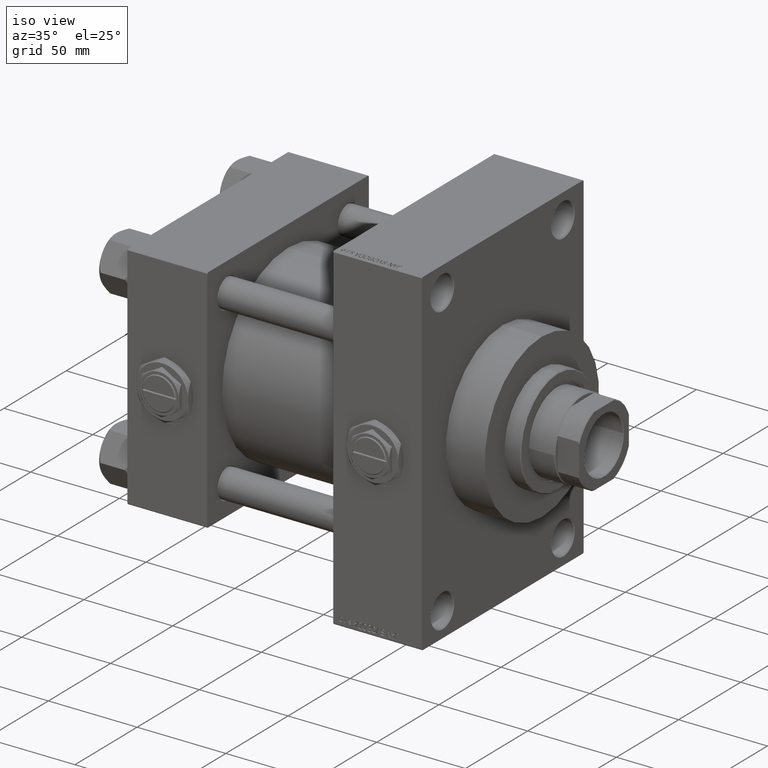
[diagram: clean part render]
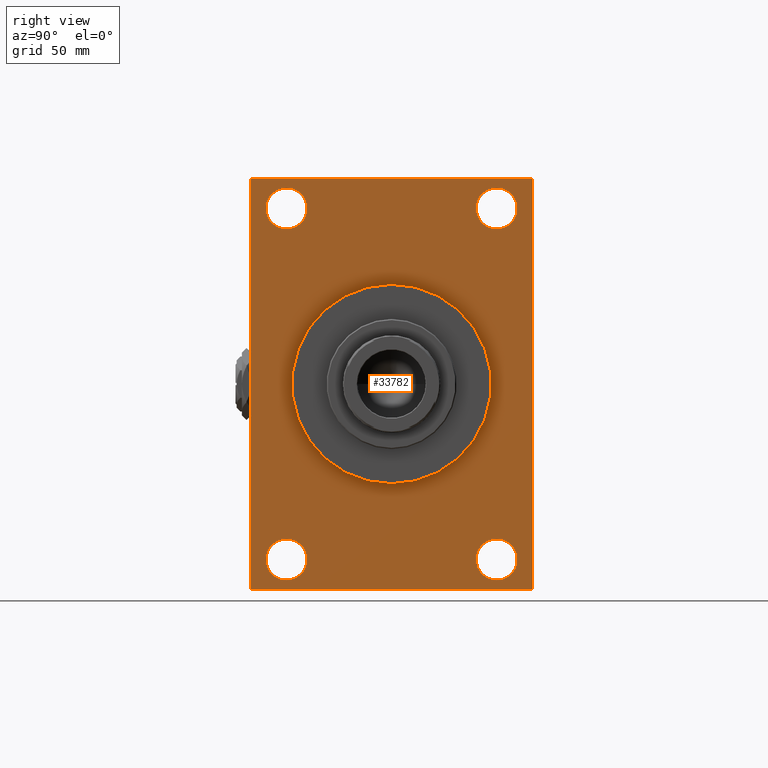
[diagram: tour spotlight — one face highlighted and labeled with its STEP entity id]
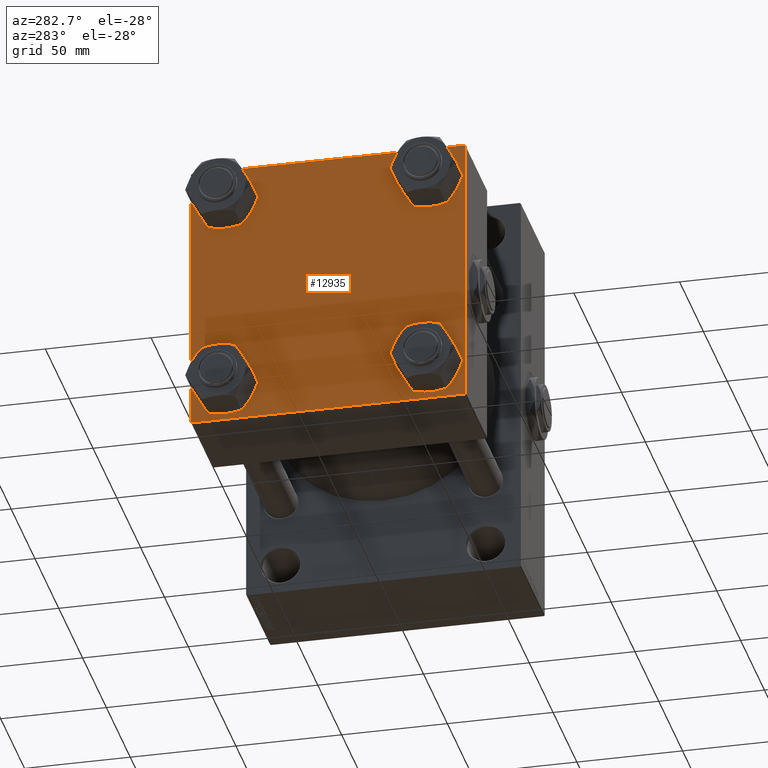
[diagram: tour spotlight — one face highlighted and labeled with its STEP entity id]
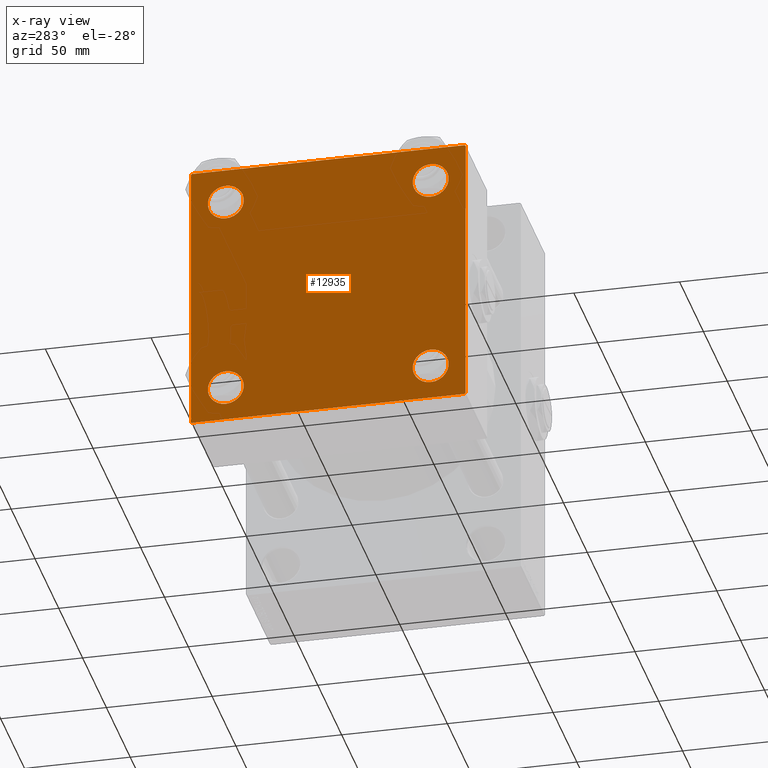
[diagram: x-ray of the same camera — body ghosted, this tour face saturated]
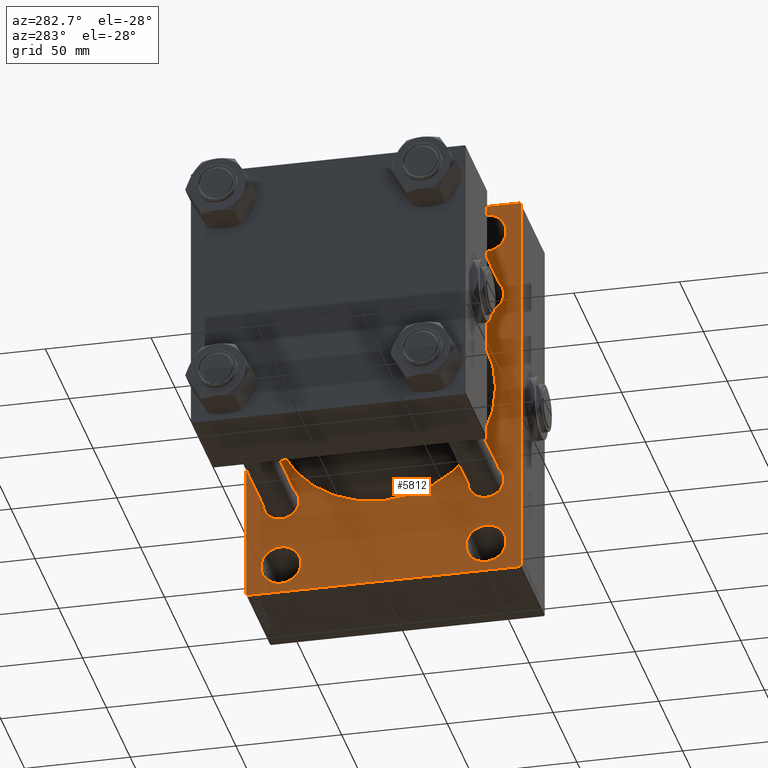
[diagram: tour spotlight — one face highlighted and labeled with its STEP entity id]
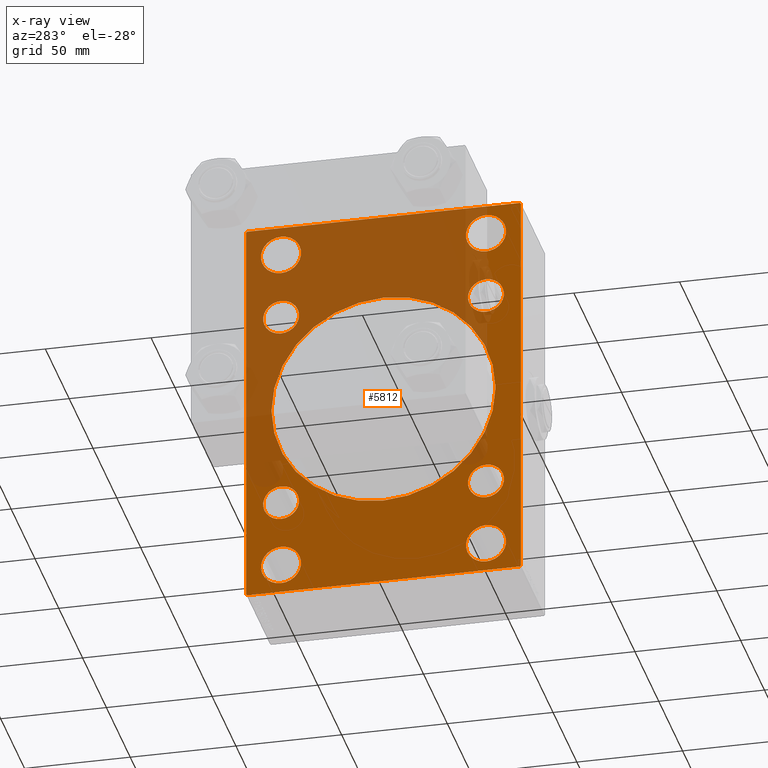
[diagram: x-ray of the same camera — body ghosted, this tour face saturated]
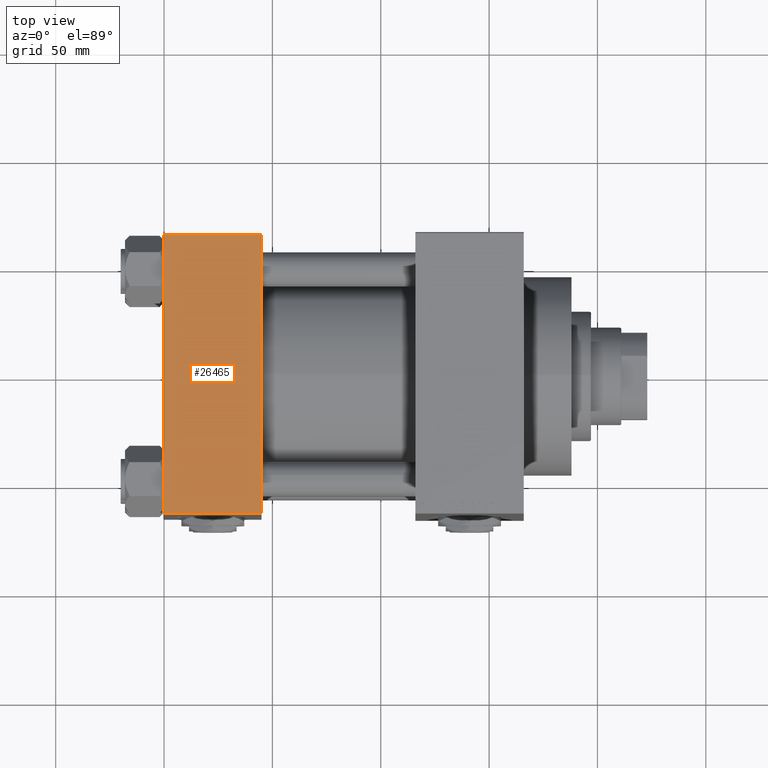
[diagram: tour spotlight — one face highlighted and labeled with its STEP entity id]
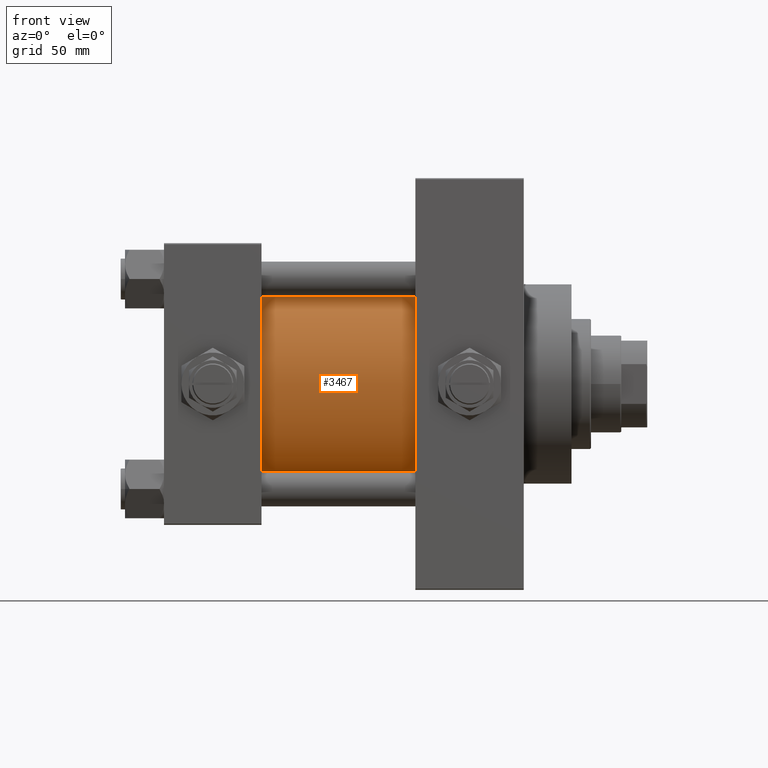
[diagram: tour spotlight — one face highlighted and labeled with its STEP entity id]
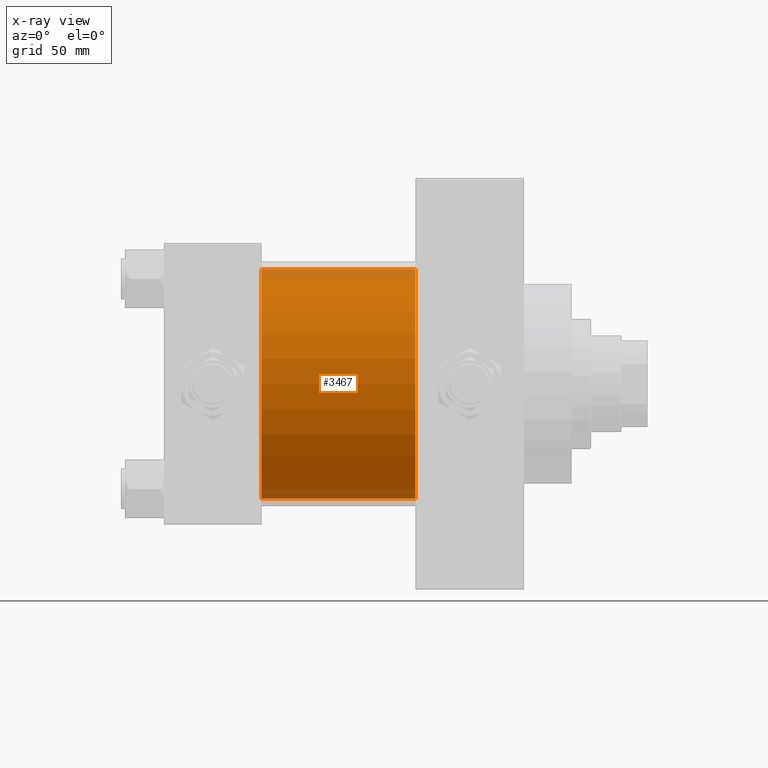
[diagram: x-ray of the same camera — body ghosted, this tour face saturated]
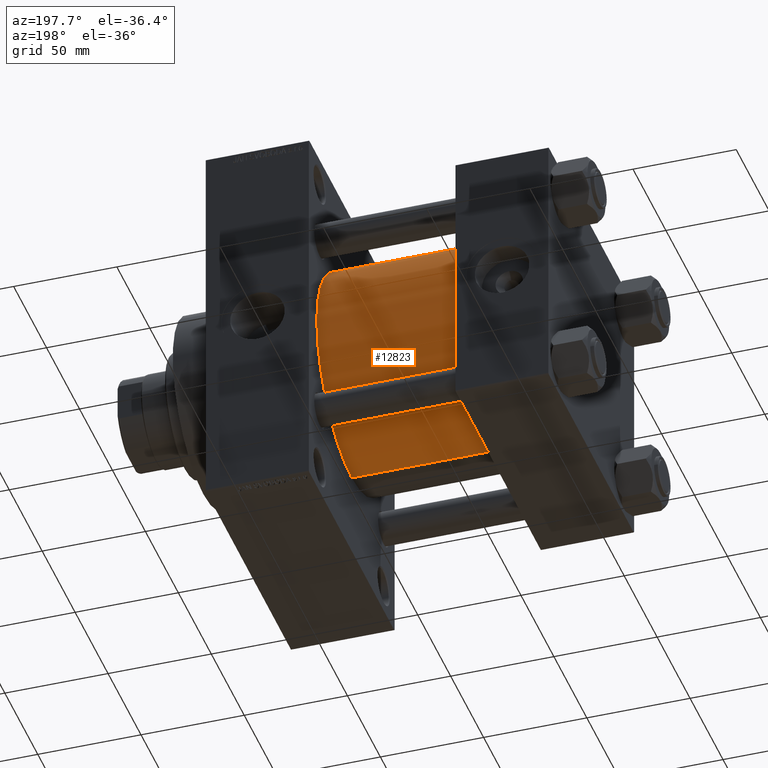
[diagram: tour spotlight — one face highlighted and labeled with its STEP entity id]
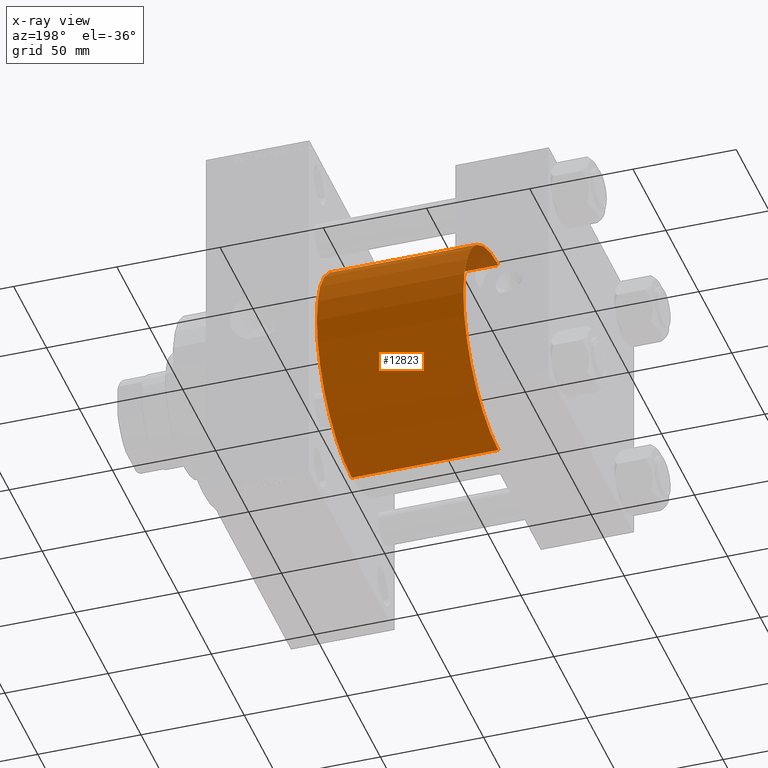
[diagram: x-ray of the same camera — body ghosted, this tour face saturated]
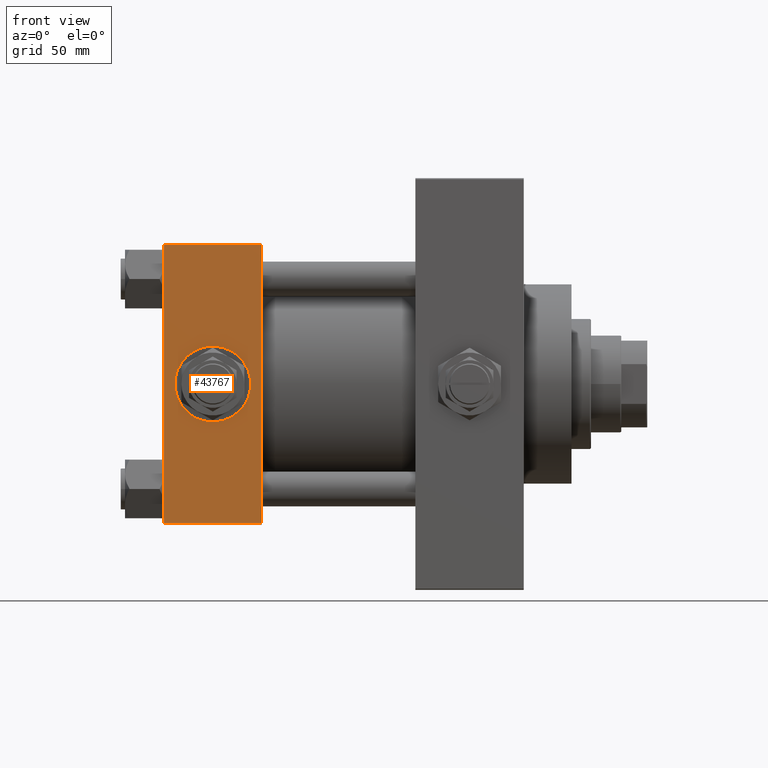
[diagram: tour spotlight — one face highlighted and labeled with its STEP entity id]
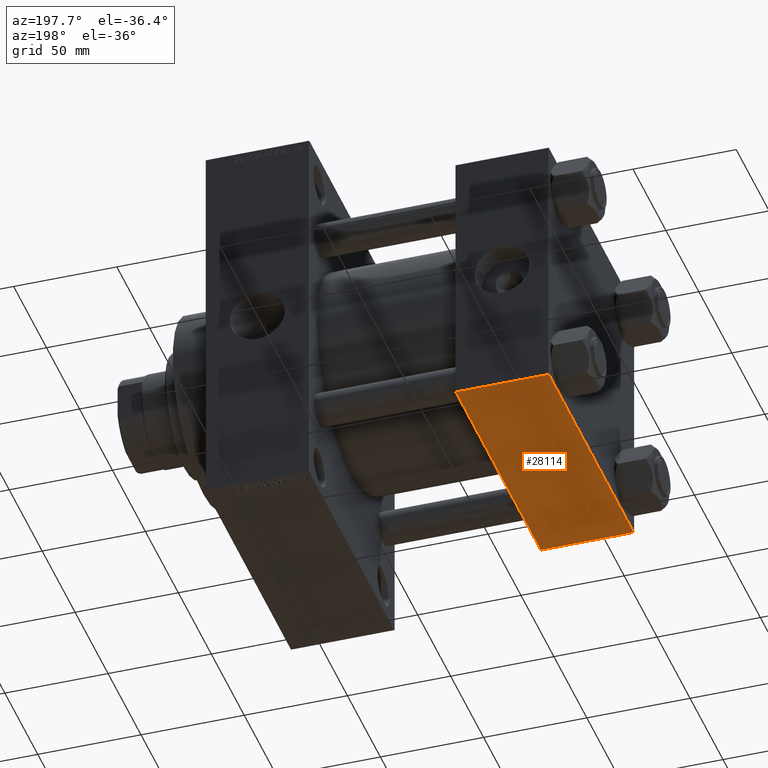
[diagram: tour spotlight — one face highlighted and labeled with its STEP entity id]
A machine part: a face-by-face anatomy tour. The part has 1253 B-rep faces; the first image is the clean iso view, then the 8 largest visible faces are spotlighted one at a time (largest first), each with its STEP entity span.

Face 1 — right view, entity #33782. In plain terms, the highlighted planar face has unit normal (-1, 0, 0).
Definition (entity closure, byte-faithful):
#436 = EDGE_LOOP ( 'NONE', ( #14966, #32865 ) ) ;
#486 = CARTESIAN_POINT ( 'NONE',  ( 165.9999999999999716, 48.50000000000000711, -71.49999999999995737 ) ) ;
#807 = CIRCLE ( 'NONE', #45807, 9.500000000000063949 ) ;
#941 = VECTOR ( 'NONE', #4850, 1000.000000000000114 ) ;
#997 = CARTESIAN_POINT ( 'NONE',  ( 165.9999999999999716, 64.99999999999998579, -94.50000000000002842 ) ) ;
#1214 = FACE_BOUND ( 'NONE', #24292, .T. ) ;
#1411 = EDGE_CURVE ( 'NONE', #14598, #5073, #49512, .T. ) ;
#1459 = DIRECTION ( 'NONE',  ( -0.000000000000000000, 0.000000000000000000, 1.000000000000000000 ) ) ;
#1498 = AXIS2_PLACEMENT_3D ( 'NONE', #39301, #46604, #15889 ) ;
#1815 = CIRCLE ( 'NONE', #29933, 9.500000000000063949 ) ;
#1996 = DIRECTION ( 'NONE',  ( -1.000000000000000000, 0.000000000000000000, -0.000000000000000000 ) ) ;
#2058 = VECTOR ( 'NONE', #22761, 1000.000000000000000 ) ;
#2336 = CARTESIAN_POINT ( 'NONE',  ( 165.9999999999999716, -48.49999999999999289, -90.50000000000008527 ) ) ;
#3118 = ORIENTED_EDGE ( 'NONE', *, *, #37519, .T. ) ;
#3356 = ORIENTED_EDGE ( 'NONE', *, *, #41386, .F. ) ;
#4313 = EDGE_CURVE ( 'NONE', #48371, #43214, #20108, .T. ) ;
#4850 = DIRECTION ( 'NONE',  ( 0.000000000000000000, -0.7071067811865474617, 0.7071067811865474617 ) ) ;
#5073 = VERTEX_POINT ( 'NONE', #43367 ) ;
#5074 = AXIS2_PLACEMENT_3D ( 'NONE', #28945, #5561, #13348 ) ;
#5501 = VERTEX_POINT ( 'NONE', #23289 ) ;
#5561 = DIRECTION ( 'NONE',  ( -1.000000000000000000, 0.000000000000000000, -0.000000000000000000 ) ) ;
#6628 = AXIS2_PLACEMENT_3D ( 'NONE', #6707, #22053, #37428 ) ;
#6707 = CARTESIAN_POINT ( 'NONE',  ( 165.9999999999999716, -48.49999999999999289, -81.00000000000001421 ) ) ;
#7003 = DIRECTION ( 'NONE',  ( 0.000000000000000000, 7.304098846218135653E-17, -1.000000000000000000 ) ) ;
#7106 = VERTEX_POINT ( 'NONE', #40613 ) ;
#7307 = CIRCLE ( 'NONE', #35439, 46.00000000000000000 ) ;
#7315 = EDGE_CURVE ( 'NONE', #13549, #7428, #23189, .T. ) ;
#7414 = LINE ( 'NONE', #42176, #2058 ) ;
#7420 = ORIENTED_EDGE ( 'NONE', *, *, #36493, .T. ) ;
#7428 = VERTEX_POINT ( 'NONE', #12350 ) ;
#8830 = VERTEX_POINT ( 'NONE', #28419 ) ;
#8955 = EDGE_CURVE ( 'NONE', #20725, #22878, #46038, .T. ) ;
#9457 = ORIENTED_EDGE ( 'NONE', *, *, #38642, .T. ) ;
#10068 = CARTESIAN_POINT ( 'NONE',  ( 165.9999999999999716, 64.99999999999997158, 94.99999999999997158 ) ) ;
#10178 = AXIS2_PLACEMENT_3D ( 'NONE', #35825, #47396, #43139 ) ;
#10254 = CARTESIAN_POINT ( 'NONE',  ( 165.9999999999999716, 48.50000000000000711, -90.50000000000008527 ) ) ;
#10926 = VECTOR ( 'NONE', #14521, 1000.000000000000114 ) ;
#11042 = CARTESIAN_POINT ( 'NONE',  ( 165.9999999999999716, -48.50000000000000000, 90.50000000000007105 ) ) ;
#11321 = EDGE_LOOP ( 'NONE', ( #40863, #30525 ) ) ;
#12296 = VERTEX_POINT ( 'NONE', #48307 ) ;
#12350 = CARTESIAN_POINT ( 'NONE',  ( 165.9999999999999716, 48.50000000000000711, 71.49999999999994316 ) ) ;
#13348 = DIRECTION ( 'NONE',  ( 0.000000000000000000, 0.000000000000000000, 1.000000000000000000 ) ) ;
#13386 = EDGE_CURVE ( 'NONE', #36518, #27345, #25692, .T. ) ;
#13507 = EDGE_CURVE ( 'NONE', #7106, #14102, #807, .T. ) ;
#13549 = VERTEX_POINT ( 'NONE', #44737 ) ;
#14102 = VERTEX_POINT ( 'NONE', #11042 ) ;
#14165 = VECTOR ( 'NONE', #17124, 1000.000000000000000 ) ;
#14521 = DIRECTION ( 'NONE',  ( 0.000000000000000000, 0.7071067811865474617, -0.7071067811865474617 ) ) ;
#14598 = VERTEX_POINT ( 'NONE', #35862 ) ;
#14966 = ORIENTED_EDGE ( 'NONE', *, *, #42367, .T. ) ;
#15604 = EDGE_CURVE ( 'NONE', #5073, #14598, #7307, .T. ) ;
#15679 = LINE ( 'NONE', #27246, #49419 ) ;
#15889 = DIRECTION ( 'NONE',  ( 0.000000000000000000, 0.000000000000000000, 1.000000000000000000 ) ) ;
#16062 = FACE_BOUND ( 'NONE', #44939, .T. ) ;
#16296 = DIRECTION ( 'NONE',  ( -1.000000000000000000, 0.000000000000000000, -0.000000000000000000 ) ) ;
#17124 = DIRECTION ( 'NONE',  ( 0.000000000000000000, -1.000000000000000000, 0.000000000000000000 ) ) ;
#17951 = EDGE_CURVE ( 'NONE', #5501, #12296, #31763, .T. ) ;
#18034 = CARTESIAN_POINT ( 'NONE',  ( 165.9999999999999716, -48.50000000000000000, 81.00000000000000000 ) ) ;
#18545 = DIRECTION ( 'NONE',  ( -1.000000000000000000, 0.000000000000000000, -0.000000000000000000 ) ) ;
#19464 = VERTEX_POINT ( 'NONE', #25158 ) ;
#19690 = DIRECTION ( 'NONE',  ( 0.000000000000000000, -1.000000000000000000, -1.067522139062650425E-16 ) ) ;
#19783 = EDGE_CURVE ( 'NONE', #27345, #36518, #1815, .T. ) ;
#20062 = DIRECTION ( 'NONE',  ( 0.000000000000000000, 0.000000000000000000, 1.000000000000000000 ) ) ;
#20108 = LINE ( 'NONE', #997, #44816 ) ;
#20725 = VERTEX_POINT ( 'NONE', #39881 ) ;
#20830 = FACE_OUTER_BOUND ( 'NONE', #26803, .T. ) ;
#20871 = DIRECTION ( 'NONE',  ( 0.000000000000000000, 0.000000000000000000, 1.000000000000000000 ) ) ;
#21082 = FACE_BOUND ( 'NONE', #30604, .T. ) ;
#21158 = ORIENTED_EDGE ( 'NONE', *, *, #30679, .T. ) ;
#21236 = ORIENTED_EDGE ( 'NONE', *, *, #7315, .T. ) ;
#21242 = CARTESIAN_POINT ( 'NONE',  ( 165.9999999999999716, -65.00000000000001421, 94.49999999999997158 ) ) ;
#21723 = ORIENTED_EDGE ( 'NONE', *, *, #4313, .T. ) ;
#22053 = DIRECTION ( 'NONE',  ( -1.000000000000000000, 0.000000000000000000, -0.000000000000000000 ) ) ;
#22056 = DIRECTION ( 'NONE',  ( 0.000000000000000000, 0.000000000000000000, 1.000000000000000000 ) ) ;
#22450 = ORIENTED_EDGE ( 'NONE', *, *, #19783, .T. ) ;
#22490 = ORIENTED_EDGE ( 'NONE', *, *, #34007, .F. ) ;
#22610 = DIRECTION ( 'NONE',  ( -0.000000000000000000, -0.7071067811865378028, -0.7071067811865573427 ) ) ;
#22761 = DIRECTION ( 'NONE',  ( 0.000000000000000000, 0.000000000000000000, -1.000000000000000000 ) ) ;
#22878 = VERTEX_POINT ( 'NONE', #21242 ) ;
#22990 = ORIENTED_EDGE ( 'NONE', *, *, #13507, .T. ) ;
#23085 = DIRECTION ( 'NONE',  ( 0.000000000000000000, 0.000000000000000000, -1.000000000000000000 ) ) ;
#23189 = CIRCLE ( 'NONE', #1498, 9.500000000000063949 ) ;
#23251 = CARTESIAN_POINT ( 'NONE',  ( 165.9999999999999716, 64.49999999999998579, -95.00000000000001421 ) ) ;
#23289 = CARTESIAN_POINT ( 'NONE',  ( 165.9999999999999716, 64.99999999999997158, 94.49999999999997158 ) ) ;
#24292 = EDGE_LOOP ( 'NONE', ( #21158, #21236 ) ) ;
#25158 = CARTESIAN_POINT ( 'NONE',  ( 165.9999999999999716, -64.50000000000001421, -95.00000000000002842 ) ) ;
#25579 = DIRECTION ( 'NONE',  ( -1.000000000000000000, 0.000000000000000000, -0.000000000000000000 ) ) ;
#25692 = CIRCLE ( 'NONE', #44228, 9.500000000000063949 ) ;
#25846 = LINE ( 'NONE', #33891, #10926 ) ;
#26289 = VERTEX_POINT ( 'NONE', #2336 ) ;
#26803 = EDGE_LOOP ( 'NONE', ( #9457, #7420, #22490, #21723, #3356, #36409, #29061, #41810 ) ) ;
#27130 = CARTESIAN_POINT ( 'NONE',  ( 165.9999999999999716, -65.00000000000001421, 94.49999999999997158 ) ) ;
#27246 = CARTESIAN_POINT ( 'NONE',  ( 165.9999999999999716, 64.99999999999998579, -95.00000000000001421 ) ) ;
#27345 = VERTEX_POINT ( 'NONE', #486 ) ;
#27629 = FACE_BOUND ( 'NONE', #436, .T. ) ;
#28152 = EDGE_CURVE ( 'NONE', #8830, #26289, #38798, .T. ) ;
#28419 = CARTESIAN_POINT ( 'NONE',  ( 165.9999999999999716, -48.49999999999999289, -71.49999999999995737 ) ) ;
#28945 = CARTESIAN_POINT ( 'NONE',  ( 165.9999999999999716, 48.50000000000000711, 81.00000000000000000 ) ) ;
#29061 = ORIENTED_EDGE ( 'NONE', *, *, #37796, .T. ) ;
#29933 = AXIS2_PLACEMENT_3D ( 'NONE', #41475, #18545, #34143 ) ;
#30281 = DIRECTION ( 'NONE',  ( 1.000000000000000000, 0.000000000000000000, 0.000000000000000000 ) ) ;
#30525 = ORIENTED_EDGE ( 'NONE', *, *, #15604, .F. ) ;
#30604 = EDGE_LOOP ( 'NONE', ( #22990, #3118 ) ) ;
#30679 = EDGE_CURVE ( 'NONE', #7428, #13549, #42900, .T. ) ;
#30885 = DIRECTION ( 'NONE',  ( 1.000000000000000000, 0.000000000000000000, 0.000000000000000000 ) ) ;
#31406 = PLANE ( 'NONE',  #38970 ) ;
#31763 = LINE ( 'NONE', #47132, #941 ) ;
#32403 = FACE_BOUND ( 'NONE', #11321, .T. ) ;
#32865 = ORIENTED_EDGE ( 'NONE', *, *, #28152, .T. ) ;
#33364 = CARTESIAN_POINT ( 'NONE',  ( 165.9999999999999716, -65.00000000000001421, -94.50000000000002842 ) ) ;
#33782 = ADVANCED_FACE ( 'NONE', ( #21082, #27629, #16062, #1214, #32403, #20830 ), #31406, .F. ) ;
#33891 = CARTESIAN_POINT ( 'NONE',  ( 165.9999999999999716, -64.50000000000001421, -95.00000000000002842 ) ) ;
#34007 = EDGE_CURVE ( 'NONE', #48371, #19464, #15679, .T. ) ;
#34143 = DIRECTION ( 'NONE',  ( 0.000000000000000000, 0.000000000000000000, 1.000000000000000000 ) ) ;
#34321 = AXIS2_PLACEMENT_3D ( 'NONE', #43302, #1996, #20871 ) ;
#35166 = CARTESIAN_POINT ( 'NONE',  ( 165.9999999999999716, 0.000000000000000000, 0.000000000000000000 ) ) ;
#35429 = CARTESIAN_POINT ( 'NONE',  ( 165.9999999999999716, 48.50000000000000711, -81.00000000000001421 ) ) ;
#35439 = AXIS2_PLACEMENT_3D ( 'NONE', #45163, #30281, #45657 ) ;
#35825 = CARTESIAN_POINT ( 'NONE',  ( 165.9999999999999716, -48.50000000000000000, 81.00000000000000000 ) ) ;
#35862 = CARTESIAN_POINT ( 'NONE',  ( 165.9999999999999716, 0.000000000000000000, 46.00000000000000000 ) ) ;
#36205 = CARTESIAN_POINT ( 'NONE',  ( 165.9999999999999716, 0.000000000000000000, 0.000000000000000000 ) ) ;
#36409 = ORIENTED_EDGE ( 'NONE', *, *, #17951, .T. ) ;
#36493 = EDGE_CURVE ( 'NONE', #41562, #19464, #25846, .T. ) ;
#36518 = VERTEX_POINT ( 'NONE', #10254 ) ;
#36521 = LINE ( 'NONE', #10068, #14165 ) ;
#36523 = CARTESIAN_POINT ( 'NONE',  ( 165.9999999999999716, 64.99999999999998579, -94.50000000000002842 ) ) ;
#37428 = DIRECTION ( 'NONE',  ( 0.000000000000000000, 0.000000000000000000, 1.000000000000000000 ) ) ;
#37519 = EDGE_CURVE ( 'NONE', #14102, #7106, #39917, .T. ) ;
#37722 = CARTESIAN_POINT ( 'NONE',  ( 165.9999999999999716, 64.99999999999997158, 94.99999999999997158 ) ) ;
#37796 = EDGE_CURVE ( 'NONE', #12296, #20725, #36521, .T. ) ;
#38642 = EDGE_CURVE ( 'NONE', #22878, #41562, #7414, .T. ) ;
#38798 = CIRCLE ( 'NONE', #6628, 9.500000000000063949 ) ;
#38970 = AXIS2_PLACEMENT_3D ( 'NONE', #36205, #47767, #1459 ) ;
#39301 = CARTESIAN_POINT ( 'NONE',  ( 165.9999999999999716, 48.50000000000000711, 81.00000000000000000 ) ) ;
#39881 = CARTESIAN_POINT ( 'NONE',  ( 165.9999999999999716, -64.50000000000002842, 94.99999999999997158 ) ) ;
#39917 = CIRCLE ( 'NONE', #10178, 9.500000000000063949 ) ;
#40174 = VECTOR ( 'NONE', #22610, 1000.000000000000000 ) ;
#40613 = CARTESIAN_POINT ( 'NONE',  ( 165.9999999999999716, -48.50000000000000000, 71.49999999999994316 ) ) ;
#40772 = CIRCLE ( 'NONE', #34321, 9.500000000000063949 ) ;
#40863 = ORIENTED_EDGE ( 'NONE', *, *, #1411, .F. ) ;
#41386 = EDGE_CURVE ( 'NONE', #5501, #43214, #42005, .T. ) ;
#41475 = CARTESIAN_POINT ( 'NONE',  ( 165.9999999999999716, 48.50000000000000711, -81.00000000000001421 ) ) ;
#41562 = VERTEX_POINT ( 'NONE', #33364 ) ;
#41568 = VECTOR ( 'NONE', #7003, 1000.000000000000000 ) ;
#41810 = ORIENTED_EDGE ( 'NONE', *, *, #8955, .T. ) ;
#42005 = LINE ( 'NONE', #37722, #41568 ) ;
#42176 = CARTESIAN_POINT ( 'NONE',  ( 165.9999999999999716, -65.00000000000001421, 94.99999999999997158 ) ) ;
#42346 = ORIENTED_EDGE ( 'NONE', *, *, #13386, .T. ) ;
#42367 = EDGE_CURVE ( 'NONE', #26289, #8830, #40772, .T. ) ;
#42900 = CIRCLE ( 'NONE', #5074, 9.500000000000063949 ) ;
#43139 = DIRECTION ( 'NONE',  ( 0.000000000000000000, 0.000000000000000000, 1.000000000000000000 ) ) ;
#43214 = VERTEX_POINT ( 'NONE', #36523 ) ;
#43302 = CARTESIAN_POINT ( 'NONE',  ( 165.9999999999999716, -48.49999999999999289, -81.00000000000001421 ) ) ;
#43367 = CARTESIAN_POINT ( 'NONE',  ( 165.9999999999999716, 5.633375276077824704E-15, -46.00000000000000000 ) ) ;
#44228 = AXIS2_PLACEMENT_3D ( 'NONE', #35429, #16296, #20062 ) ;
#44536 = DIRECTION ( 'NONE',  ( -0.000000000000000000, 0.7071067811865573427, 0.7071067811865378028 ) ) ;
#44737 = CARTESIAN_POINT ( 'NONE',  ( 165.9999999999999716, 48.50000000000000711, 90.50000000000007105 ) ) ;
#44816 = VECTOR ( 'NONE', #44536, 1000.000000000000000 ) ;
#44939 = EDGE_LOOP ( 'NONE', ( #42346, #22450 ) ) ;
#45163 = CARTESIAN_POINT ( 'NONE',  ( 165.9999999999999716, 0.000000000000000000, 0.000000000000000000 ) ) ;
#45657 = DIRECTION ( 'NONE',  ( 0.000000000000000000, 0.000000000000000000, -1.000000000000000000 ) ) ;
#45807 = AXIS2_PLACEMENT_3D ( 'NONE', #18034, #25579, #22056 ) ;
#46038 = LINE ( 'NONE', #27130, #40174 ) ;
#46604 = DIRECTION ( 'NONE',  ( -1.000000000000000000, 0.000000000000000000, -0.000000000000000000 ) ) ;
#47132 = CARTESIAN_POINT ( 'NONE',  ( 165.9999999999999716, 64.49999999999997158, 94.99999999999997158 ) ) ;
#47396 = DIRECTION ( 'NONE',  ( -1.000000000000000000, 0.000000000000000000, -0.000000000000000000 ) ) ;
#47767 = DIRECTION ( 'NONE',  ( -1.000000000000000000, 0.000000000000000000, -0.000000000000000000 ) ) ;
#48307 = CARTESIAN_POINT ( 'NONE',  ( 165.9999999999999716, 64.49999999999997158, 94.99999999999997158 ) ) ;
#48371 = VERTEX_POINT ( 'NONE', #23251 ) ;
#48716 = AXIS2_PLACEMENT_3D ( 'NONE', #35166, #30885, #23085 ) ;
#49419 = VECTOR ( 'NONE', #19690, 1000.000000000000000 ) ;
#49512 = CIRCLE ( 'NONE', #48716, 46.00000000000000000 ) ;

Face 2 — auxiliary view, entity #12935. An x-ray twin of the same camera follows (body ghosted, this face saturated) — the face is partly hidden behind the body. In plain terms, the highlighted planar face has unit normal (-1, 0, 0).
Definition (entity closure, byte-faithful):
#695 = CARTESIAN_POINT ( 'NONE',  ( 0.000000000000000000, -48.44999999999999574, 56.95000000000003837 ) ) ;
#1487 = EDGE_CURVE ( 'NONE', #8454, #35833, #43727, .T. ) ;
#1561 = CIRCLE ( 'NONE', #34508, 8.500000000000007105 ) ;
#2263 = DIRECTION ( 'NONE',  ( 0.000000000000000000, 0.000000000000000000, 1.000000000000000000 ) ) ;
#2511 = DIRECTION ( 'NONE',  ( 1.000000000000000000, -0.000000000000000000, 0.000000000000000000 ) ) ;
#2891 = CARTESIAN_POINT ( 'NONE',  ( 0.000000000000000000, 64.49999999999997158, -64.99999999999998579 ) ) ;
#3033 = AXIS2_PLACEMENT_3D ( 'NONE', #34282, #7603, #19180 ) ;
#3214 = AXIS2_PLACEMENT_3D ( 'NONE', #6822, #21922, #48118 ) ;
#3218 = LINE ( 'NONE', #30137, #25578 ) ;
#3515 = EDGE_CURVE ( 'NONE', #41910, #8640, #35133, .T. ) ;
#5316 = VECTOR ( 'NONE', #16525, 1000.000000000000114 ) ;
#5361 = VERTEX_POINT ( 'NONE', #11833 ) ;
#5368 = CIRCLE ( 'NONE', #35114, 8.500000000000007105 ) ;
#5418 = LINE ( 'NONE', #13200, #27176 ) ;
#5482 = ORIENTED_EDGE ( 'NONE', *, *, #5690, .T. ) ;
#5690 = EDGE_CURVE ( 'NONE', #40249, #44990, #5418, .T. ) ;
#5937 = EDGE_LOOP ( 'NONE', ( #20020, #40493 ) ) ;
#5960 = CARTESIAN_POINT ( 'NONE',  ( 0.000000000000000000, 48.45000000000000995, 48.45000000000001705 ) ) ;
#6039 = CARTESIAN_POINT ( 'NONE',  ( 0.000000000000000000, -48.44999999999999574, 48.45000000000003126 ) ) ;
#6528 = CARTESIAN_POINT ( 'NONE',  ( 0.000000000000000000, 65.00000000000000000, 65.00000000000001421 ) ) ;
#6576 = FACE_BOUND ( 'NONE', #5937, .T. ) ;
#6709 = EDGE_LOOP ( 'NONE', ( #39444, #38071 ) ) ;
#6822 = CARTESIAN_POINT ( 'NONE',  ( 0.000000000000000000, 0.000000000000000000, 0.000000000000000000 ) ) ;
#6887 = DIRECTION ( 'NONE',  ( -0.000000000000000000, -0.7071067811865474617, -0.7071067811865474617 ) ) ;
#7131 = VERTEX_POINT ( 'NONE', #37331 ) ;
#7367 = VERTEX_POINT ( 'NONE', #27698 ) ;
#7603 = DIRECTION ( 'NONE',  ( 1.000000000000000000, -0.000000000000000000, 0.000000000000000000 ) ) ;
#8427 = DIRECTION ( 'NONE',  ( -0.000000000000000000, 0.7071067811865672237, 0.7071067811865279218 ) ) ;
#8454 = VERTEX_POINT ( 'NONE', #10138 ) ;
#8640 = VERTEX_POINT ( 'NONE', #33253 ) ;
#9249 = DIRECTION ( 'NONE',  ( 0.000000000000000000, 0.000000000000000000, 1.000000000000000000 ) ) ;
#9459 = CARTESIAN_POINT ( 'NONE',  ( 0.000000000000000000, -64.49999999999997158, 65.00000000000000000 ) ) ;
#9676 = AXIS2_PLACEMENT_3D ( 'NONE', #6039, #2511, #2263 ) ;
#10031 = DIRECTION ( 'NONE',  ( 0.000000000000000000, 0.000000000000000000, 1.000000000000000000 ) ) ;
#10099 = PLANE ( 'NONE',  #3214 ) ;
#10138 = CARTESIAN_POINT ( 'NONE',  ( 0.000000000000000000, 64.49999999999997158, 65.00000000000001421 ) ) ;
#10469 = VERTEX_POINT ( 'NONE', #2891 ) ;
#11833 = CARTESIAN_POINT ( 'NONE',  ( 0.000000000000000000, 48.45000000000000995, -39.95000000000000284 ) ) ;
#11859 = CIRCLE ( 'NONE', #23923, 8.500000000000007105 ) ;
#12261 = EDGE_CURVE ( 'NONE', #7367, #36738, #1561, .T. ) ;
#12299 = DIRECTION ( 'NONE',  ( 0.000000000000000000, 0.000000000000000000, -1.000000000000000000 ) ) ;
#12935 = ADVANCED_FACE ( 'NONE', ( #41077, #37299, #18149, #6576, #25937 ), #10099, .T. ) ;
#13200 = CARTESIAN_POINT ( 'NONE',  ( -0.000000000000000000, -64.74999999999819522, 64.75000000000179057 ) ) ;
#13505 = CARTESIAN_POINT ( 'NONE',  ( 0.000000000000000000, 48.45000000000000995, -56.95000000000002416 ) ) ;
#13954 = AXIS2_PLACEMENT_3D ( 'NONE', #5960, #47497, #43991 ) ;
#14076 = EDGE_CURVE ( 'NONE', #31791, #17392, #38624, .T. ) ;
#15018 = CARTESIAN_POINT ( 'NONE',  ( 0.000000000000000000, 65.00000000000000000, 64.49999999999998579 ) ) ;
#15706 = CARTESIAN_POINT ( 'NONE',  ( 0.000000000000000000, -48.44999999999999574, -48.45000000000003126 ) ) ;
#16525 = DIRECTION ( 'NONE',  ( 0.000000000000000000, 0.7071067811865474617, -0.7071067811865474617 ) ) ;
#17118 = CARTESIAN_POINT ( 'NONE',  ( 0.000000000000000000, -64.75000000000176215, -64.74999999999816680 ) ) ;
#17392 = VERTEX_POINT ( 'NONE', #695 ) ;
#17503 = VERTEX_POINT ( 'NONE', #13505 ) ;
#17587 = ORIENTED_EDGE ( 'NONE', *, *, #43964, .T. ) ;
#17960 = CARTESIAN_POINT ( 'NONE',  ( 0.000000000000000000, 48.45000000000000995, 39.95000000000000284 ) ) ;
#18149 = FACE_BOUND ( 'NONE', #23300, .T. ) ;
#18263 = DIRECTION ( 'NONE',  ( 1.000000000000000000, -0.000000000000000000, 0.000000000000000000 ) ) ;
#19180 = DIRECTION ( 'NONE',  ( 0.000000000000000000, 0.000000000000000000, 1.000000000000000000 ) ) ;
#19325 = EDGE_CURVE ( 'NONE', #7131, #44336, #31969, .T. ) ;
#20020 = ORIENTED_EDGE ( 'NONE', *, *, #31504, .T. ) ;
#20044 = ORIENTED_EDGE ( 'NONE', *, *, #19325, .T. ) ;
#20094 = CARTESIAN_POINT ( 'NONE',  ( 0.000000000000000000, -65.00000000000000000, 64.50000000000000000 ) ) ;
#21068 = VECTOR ( 'NONE', #29424, 1000.000000000000000 ) ;
#21292 = CARTESIAN_POINT ( 'NONE',  ( 0.000000000000000000, 64.74999999999998579, 64.74999999999998579 ) ) ;
#21601 = ORIENTED_EDGE ( 'NONE', *, *, #45635, .F. ) ;
#21922 = DIRECTION ( 'NONE',  ( -1.000000000000000000, 0.000000000000000000, -0.000000000000000000 ) ) ;
#22779 = CARTESIAN_POINT ( 'NONE',  ( 0.000000000000000000, 48.45000000000000995, -48.45000000000001705 ) ) ;
#23300 = EDGE_LOOP ( 'NONE', ( #17587, #30714 ) ) ;
#23849 = EDGE_CURVE ( 'NONE', #28898, #10469, #49421, .T. ) ;
#23923 = AXIS2_PLACEMENT_3D ( 'NONE', #15706, #42659, #31049 ) ;
#24369 = EDGE_LOOP ( 'NONE', ( #42841, #39554, #41874, #20044, #21601, #5482, #29686, #27019 ) ) ;
#24394 = CIRCLE ( 'NONE', #13954, 8.500000000000007105 ) ;
#24904 = LINE ( 'NONE', #6528, #21068 ) ;
#25578 = VECTOR ( 'NONE', #45514, 1000.000000000000000 ) ;
#25876 = VECTOR ( 'NONE', #44331, 1000.000000000000000 ) ;
#25937 = FACE_OUTER_BOUND ( 'NONE', #24369, .T. ) ;
#27019 = ORIENTED_EDGE ( 'NONE', *, *, #1487, .T. ) ;
#27176 = VECTOR ( 'NONE', #8427, 1000.000000000000000 ) ;
#27247 = EDGE_CURVE ( 'NONE', #35833, #28898, #40808, .T. ) ;
#27550 = CARTESIAN_POINT ( 'NONE',  ( 0.000000000000000000, -48.44999999999999574, 39.95000000000001705 ) ) ;
#27698 = CARTESIAN_POINT ( 'NONE',  ( 0.000000000000000000, -48.44999999999999574, -39.95000000000001705 ) ) ;
#28016 = VECTOR ( 'NONE', #12299, 1000.000000000000000 ) ;
#28370 = CARTESIAN_POINT ( 'NONE',  ( 0.000000000000000000, -48.44999999999999574, 48.45000000000003126 ) ) ;
#28616 = EDGE_CURVE ( 'NONE', #8454, #44990, #24904, .T. ) ;
#28652 = CARTESIAN_POINT ( 'NONE',  ( 0.000000000000000000, -48.44999999999999574, -48.45000000000003126 ) ) ;
#28694 = ORIENTED_EDGE ( 'NONE', *, *, #12261, .T. ) ;
#28898 = VERTEX_POINT ( 'NONE', #36442 ) ;
#28951 = CARTESIAN_POINT ( 'NONE',  ( 0.000000000000000000, 65.00000000000000000, 65.00000000000001421 ) ) ;
#29424 = DIRECTION ( 'NONE',  ( 0.000000000000000000, -1.000000000000000000, -1.067522139062650425E-16 ) ) ;
#29686 = ORIENTED_EDGE ( 'NONE', *, *, #28616, .F. ) ;
#29954 = ORIENTED_EDGE ( 'NONE', *, *, #43707, .T. ) ;
#30137 = CARTESIAN_POINT ( 'NONE',  ( 0.000000000000000000, 65.00000000000000000, -64.99999999999998579 ) ) ;
#30714 = ORIENTED_EDGE ( 'NONE', *, *, #41721, .T. ) ;
#31049 = DIRECTION ( 'NONE',  ( 0.000000000000000000, 0.000000000000000000, 1.000000000000000000 ) ) ;
#31504 = EDGE_CURVE ( 'NONE', #8640, #41910, #24394, .T. ) ;
#31791 = VERTEX_POINT ( 'NONE', #27550 ) ;
#31936 = LINE ( 'NONE', #47298, #28016 ) ;
#31969 = LINE ( 'NONE', #17118, #33956 ) ;
#33253 = CARTESIAN_POINT ( 'NONE',  ( 0.000000000000000000, 48.45000000000000995, 56.95000000000002416 ) ) ;
#33427 = CIRCLE ( 'NONE', #41504, 8.500000000000007105 ) ;
#33431 = DIRECTION ( 'NONE',  ( 1.000000000000000000, -0.000000000000000000, 0.000000000000000000 ) ) ;
#33719 = CARTESIAN_POINT ( 'NONE',  ( 0.000000000000000000, -65.00000000000000000, -64.49999999999991473 ) ) ;
#33956 = VECTOR ( 'NONE', #47334, 1000.000000000000000 ) ;
#34282 = CARTESIAN_POINT ( 'NONE',  ( 0.000000000000000000, 48.45000000000000995, -48.45000000000001705 ) ) ;
#34508 = AXIS2_PLACEMENT_3D ( 'NONE', #28652, #44043, #10031 ) ;
#35114 = AXIS2_PLACEMENT_3D ( 'NONE', #22779, #18263, #49219 ) ;
#35133 = CIRCLE ( 'NONE', #39162, 8.500000000000007105 ) ;
#35833 = VERTEX_POINT ( 'NONE', #15018 ) ;
#36442 = CARTESIAN_POINT ( 'NONE',  ( 0.000000000000000000, 65.00000000000000000, -64.49999999999995737 ) ) ;
#36738 = VERTEX_POINT ( 'NONE', #37609 ) ;
#37188 = EDGE_CURVE ( 'NONE', #17392, #31791, #33427, .T. ) ;
#37299 = FACE_BOUND ( 'NONE', #39396, .T. ) ;
#37331 = CARTESIAN_POINT ( 'NONE',  ( 0.000000000000000000, -64.49999999999994316, -65.00000000000000000 ) ) ;
#37609 = CARTESIAN_POINT ( 'NONE',  ( 0.000000000000000000, -48.44999999999999574, -56.95000000000003837 ) ) ;
#37613 = CARTESIAN_POINT ( 'NONE',  ( 0.000000000000000000, 64.74999999999997158, -64.74999999999997158 ) ) ;
#38071 = ORIENTED_EDGE ( 'NONE', *, *, #14076, .T. ) ;
#38624 = CIRCLE ( 'NONE', #9676, 8.500000000000007105 ) ;
#39162 = AXIS2_PLACEMENT_3D ( 'NONE', #44531, #33431, #48793 ) ;
#39396 = EDGE_LOOP ( 'NONE', ( #28694, #29954 ) ) ;
#39444 = ORIENTED_EDGE ( 'NONE', *, *, #37188, .T. ) ;
#39554 = ORIENTED_EDGE ( 'NONE', *, *, #23849, .T. ) ;
#40249 = VERTEX_POINT ( 'NONE', #20094 ) ;
#40493 = ORIENTED_EDGE ( 'NONE', *, *, #3515, .T. ) ;
#40808 = LINE ( 'NONE', #28951, #25876 ) ;
#41077 = FACE_BOUND ( 'NONE', #6709, .T. ) ;
#41504 = AXIS2_PLACEMENT_3D ( 'NONE', #28370, #43755, #9249 ) ;
#41721 = EDGE_CURVE ( 'NONE', #17503, #5361, #5368, .T. ) ;
#41874 = ORIENTED_EDGE ( 'NONE', *, *, #45800, .T. ) ;
#41910 = VERTEX_POINT ( 'NONE', #17960 ) ;
#42659 = DIRECTION ( 'NONE',  ( 1.000000000000000000, -0.000000000000000000, 0.000000000000000000 ) ) ;
#42798 = VECTOR ( 'NONE', #6887, 1000.000000000000114 ) ;
#42841 = ORIENTED_EDGE ( 'NONE', *, *, #27247, .T. ) ;
#43707 = EDGE_CURVE ( 'NONE', #36738, #7367, #11859, .T. ) ;
#43727 = LINE ( 'NONE', #21292, #5316 ) ;
#43755 = DIRECTION ( 'NONE',  ( 1.000000000000000000, -0.000000000000000000, 0.000000000000000000 ) ) ;
#43964 = EDGE_CURVE ( 'NONE', #5361, #17503, #49667, .T. ) ;
#43991 = DIRECTION ( 'NONE',  ( 0.000000000000000000, 0.000000000000000000, 1.000000000000000000 ) ) ;
#44043 = DIRECTION ( 'NONE',  ( 1.000000000000000000, -0.000000000000000000, 0.000000000000000000 ) ) ;
#44331 = DIRECTION ( 'NONE',  ( 0.000000000000000000, 0.000000000000000000, -1.000000000000000000 ) ) ;
#44336 = VERTEX_POINT ( 'NONE', #33719 ) ;
#44531 = CARTESIAN_POINT ( 'NONE',  ( 0.000000000000000000, 48.45000000000000995, 48.45000000000001705 ) ) ;
#44990 = VERTEX_POINT ( 'NONE', #9459 ) ;
#45514 = DIRECTION ( 'NONE',  ( 0.000000000000000000, -1.000000000000000000, -1.067522139062650425E-16 ) ) ;
#45635 = EDGE_CURVE ( 'NONE', #40249, #44336, #31936, .T. ) ;
#45800 = EDGE_CURVE ( 'NONE', #10469, #7131, #3218, .T. ) ;
#47298 = CARTESIAN_POINT ( 'NONE',  ( 0.000000000000000000, -65.00000000000000000, 65.00000000000000000 ) ) ;
#47334 = DIRECTION ( 'NONE',  ( 0.000000000000000000, -0.7071067811865279218, 0.7071067811865671127 ) ) ;
#47497 = DIRECTION ( 'NONE',  ( 1.000000000000000000, -0.000000000000000000, 0.000000000000000000 ) ) ;
#48118 = DIRECTION ( 'NONE',  ( -0.000000000000000000, 0.000000000000000000, 1.000000000000000000 ) ) ;
#48793 = DIRECTION ( 'NONE',  ( 0.000000000000000000, 0.000000000000000000, 1.000000000000000000 ) ) ;
#49219 = DIRECTION ( 'NONE',  ( 0.000000000000000000, 0.000000000000000000, 1.000000000000000000 ) ) ;
#49421 = LINE ( 'NONE', #37613, #42798 ) ;
#49667 = CIRCLE ( 'NONE', #3033, 8.500000000000007105 ) ;

Face 3 — auxiliary view, entity #5812. An x-ray twin of the same camera follows (body ghosted, this face saturated) — the face is partly hidden behind the body. In plain terms, the highlighted planar face has unit normal (-1, 0, 0).
Definition (entity closure, byte-faithful):
#62 = CIRCLE ( 'NONE', #25767, 8.500000000000007105 ) ;
#95 = FACE_BOUND ( 'NONE', #35126, .T. ) ;
#120 = EDGE_CURVE ( 'NONE', #9468, #2225, #37450, .T. ) ;
#313 = VERTEX_POINT ( 'NONE', #46402 ) ;
#571 = CARTESIAN_POINT ( 'NONE',  ( 115.9999999999999858, 48.45000000000000995, -56.95000000000002416 ) ) ;
#1137 = ORIENTED_EDGE ( 'NONE', *, *, #36555, .T. ) ;
#1358 = VERTEX_POINT ( 'NONE', #2737 ) ;
#1973 = ORIENTED_EDGE ( 'NONE', *, *, #10714, .T. ) ;
#2037 = EDGE_CURVE ( 'NONE', #8956, #35999, #31998, .T. ) ;
#2086 = CARTESIAN_POINT ( 'NONE',  ( 115.9999999999999858, 48.50000000000000711, -81.00000000000001421 ) ) ;
#2224 = CIRCLE ( 'NONE', #11051, 8.500000000000007105 ) ;
#2225 = VERTEX_POINT ( 'NONE', #21302 ) ;
#2552 = DIRECTION ( 'NONE',  ( 1.000000000000000000, -0.000000000000000000, 0.000000000000000000 ) ) ;
#2737 = CARTESIAN_POINT ( 'NONE',  ( 115.9999999999999858, -48.44999999999999574, 56.95000000000003837 ) ) ;
#2765 = CARTESIAN_POINT ( 'NONE',  ( 115.9999999999999858, 48.45000000000000995, 56.95000000000002416 ) ) ;
#3258 = DIRECTION ( 'NONE',  ( 0.000000000000000000, 0.000000000000000000, 1.000000000000000000 ) ) ;
#3278 = EDGE_CURVE ( 'NONE', #37776, #1358, #11800, .T. ) ;
#3370 = DIRECTION ( 'NONE',  ( -0.000000000000000000, 0.000000000000000000, 1.000000000000000000 ) ) ;
#3377 = VERTEX_POINT ( 'NONE', #46563 ) ;
#3381 = DIRECTION ( 'NONE',  ( 0.000000000000000000, 0.000000000000000000, 1.000000000000000000 ) ) ;
#3528 = CARTESIAN_POINT ( 'NONE',  ( 115.9999999999999858, -2.602085213965210642E-15, 53.00000000000000711 ) ) ;
#3615 = FACE_BOUND ( 'NONE', #39714, .T. ) ;
#3838 = EDGE_LOOP ( 'NONE', ( #34662, #32040 ) ) ;
#3874 = CARTESIAN_POINT ( 'NONE',  ( 115.9999999999999858, -48.49999999999999289, -71.50000000000001421 ) ) ;
#3914 = EDGE_CURVE ( 'NONE', #6790, #30696, #2224, .T. ) ;
#4117 = FACE_BOUND ( 'NONE', #13396, .T. ) ;
#4647 = DIRECTION ( 'NONE',  ( 0.000000000000000000, 0.000000000000000000, 1.000000000000000000 ) ) ;
#4739 = CARTESIAN_POINT ( 'NONE',  ( 115.9999999999999858, -48.44999999999999574, -39.95000000000001705 ) ) ;
#5076 = DIRECTION ( 'NONE',  ( 0.000000000000000000, -0.7071067811865474617, 0.7071067811865474617 ) ) ;
#5181 = EDGE_CURVE ( 'NONE', #28291, #21293, #32785, .T. ) ;
#5580 = AXIS2_PLACEMENT_3D ( 'NONE', #11987, #11735, #30616 ) ;
#5804 = CARTESIAN_POINT ( 'NONE',  ( 115.9999999999999858, -48.44999999999999574, 39.95000000000001705 ) ) ;
#5812 = ADVANCED_FACE ( 'NONE', ( #22492, #41901, #3615, #7394, #41654, #6894, #4117, #22739, #95, #49179 ), #37875, .T. ) ;
#6057 = ORIENTED_EDGE ( 'NONE', *, *, #15222, .T. ) ;
#6286 = VERTEX_POINT ( 'NONE', #41402 ) ;
#6487 = ORIENTED_EDGE ( 'NONE', *, *, #37917, .T. ) ;
#6684 = CIRCLE ( 'NONE', #27578, 8.500000000000007105 ) ;
#6790 = VERTEX_POINT ( 'NONE', #4739 ) ;
#6885 = DIRECTION ( 'NONE',  ( 0.000000000000000000, -1.000000000000000000, -1.067522139062650425E-16 ) ) ;
#6894 = FACE_BOUND ( 'NONE', #32170, .T. ) ;
#6932 = ORIENTED_EDGE ( 'NONE', *, *, #12871, .T. ) ;
#7031 = CARTESIAN_POINT ( 'NONE',  ( 115.9999999999999858, 48.50000000000000711, -90.50000000000002842 ) ) ;
#7287 = CARTESIAN_POINT ( 'NONE',  ( 115.9999999999999858, -48.50000000000000000, 81.00000000000000000 ) ) ;
#7394 = FACE_BOUND ( 'NONE', #3838, .T. ) ;
#7493 = EDGE_LOOP ( 'NONE', ( #17189, #19233, #27914, #26242, #46652, #18314, #25751, #34781 ) ) ;
#7605 = EDGE_CURVE ( 'NONE', #15588, #47364, #8023, .T. ) ;
#7613 = EDGE_CURVE ( 'NONE', #38659, #3377, #35712, .T. ) ;
#7656 = CARTESIAN_POINT ( 'NONE',  ( 115.9999999999999858, 48.45000000000000995, 48.45000000000001705 ) ) ;
#7741 = CIRCLE ( 'NONE', #14993, 9.500000000000092371 ) ;
#7893 = AXIS2_PLACEMENT_3D ( 'NONE', #34063, #27011, #3370 ) ;
#8023 = LINE ( 'NONE', #12789, #22402 ) ;
#8095 = AXIS2_PLACEMENT_3D ( 'NONE', #26682, #22902, #23155 ) ;
#8192 = DIRECTION ( 'NONE',  ( 1.000000000000000000, -0.000000000000000000, 0.000000000000000000 ) ) ;
#8271 = AXIS2_PLACEMENT_3D ( 'NONE', #38928, #39173, #28071 ) ;
#8512 = DIRECTION ( 'NONE',  ( 0.000000000000000000, 0.7071067811865474617, -0.7071067811865474617 ) ) ;
#8538 = DIRECTION ( 'NONE',  ( 0.000000000000000000, 0.000000000000000000, 1.000000000000000000 ) ) ;
#8604 = CARTESIAN_POINT ( 'NONE',  ( 115.9999999999999858, -48.49999999999999289, -90.50000000000002842 ) ) ;
#8956 = VERTEX_POINT ( 'NONE', #11537 ) ;
#9468 = VERTEX_POINT ( 'NONE', #11844 ) ;
#10416 = CARTESIAN_POINT ( 'NONE',  ( 115.9999999999999858, 64.49999999999997158, 94.99999999999997158 ) ) ;
#10430 = ORIENTED_EDGE ( 'NONE', *, *, #48129, .T. ) ;
#10685 = ORIENTED_EDGE ( 'NONE', *, *, #3278, .T. ) ;
#10714 = EDGE_CURVE ( 'NONE', #25424, #45899, #16876, .T. ) ;
#11051 = AXIS2_PLACEMENT_3D ( 'NONE', #12187, #47180, #4647 ) ;
#11194 = VERTEX_POINT ( 'NONE', #26593 ) ;
#11537 = CARTESIAN_POINT ( 'NONE',  ( 115.9999999999999858, -64.50000000000001421, -95.00000000000002842 ) ) ;
#11688 = VECTOR ( 'NONE', #15136, 1000.000000000000000 ) ;
#11719 = AXIS2_PLACEMENT_3D ( 'NONE', #14771, #34147, #19296 ) ;
#11735 = DIRECTION ( 'NONE',  ( 1.000000000000000000, -0.000000000000000000, 0.000000000000000000 ) ) ;
#11800 = CIRCLE ( 'NONE', #39958, 8.500000000000007105 ) ;
#11844 = CARTESIAN_POINT ( 'NONE',  ( 115.9999999999999858, 48.50000000000000711, 71.49999999999991473 ) ) ;
#11987 = CARTESIAN_POINT ( 'NONE',  ( 115.9999999999999858, -48.44999999999999574, 48.45000000000003126 ) ) ;
#11995 = ORIENTED_EDGE ( 'NONE', *, *, #5181, .T. ) ;
#12147 = EDGE_CURVE ( 'NONE', #15588, #3377, #24134, .T. ) ;
#12187 = CARTESIAN_POINT ( 'NONE',  ( 115.9999999999999858, -48.44999999999999574, -48.45000000000003126 ) ) ;
#12522 = DIRECTION ( 'NONE',  ( 1.000000000000000000, 0.000000000000000000, 0.000000000000000000 ) ) ;
#12789 = CARTESIAN_POINT ( 'NONE',  ( 115.9999999999999858, 79.74999999999997158, 79.74999999999997158 ) ) ;
#12871 = EDGE_CURVE ( 'NONE', #45899, #25424, #40960, .T. ) ;
#12979 = CIRCLE ( 'NONE', #28353, 8.500000000000007105 ) ;
#13396 = EDGE_LOOP ( 'NONE', ( #6057, #47350 ) ) ;
#14013 = EDGE_LOOP ( 'NONE', ( #1137, #21907 ) ) ;
#14038 = VERTEX_POINT ( 'NONE', #2765 ) ;
#14771 = CARTESIAN_POINT ( 'NONE',  ( 115.9999999999999858, -48.49999999999999289, -81.00000000000001421 ) ) ;
#14794 = VECTOR ( 'NONE', #48109, 1000.000000000000000 ) ;
#14988 = EDGE_CURVE ( 'NONE', #2225, #9468, #18555, .T. ) ;
#14993 = AXIS2_PLACEMENT_3D ( 'NONE', #7287, #34207, #3258 ) ;
#15136 = DIRECTION ( 'NONE',  ( 0.000000000000000000, 7.304098846218135653E-17, -1.000000000000000000 ) ) ;
#15222 = EDGE_CURVE ( 'NONE', #22005, #23076, #62, .T. ) ;
#15588 = VERTEX_POINT ( 'NONE', #10416 ) ;
#15627 = EDGE_CURVE ( 'NONE', #19976, #8956, #33805, .T. ) ;
#15716 = ORIENTED_EDGE ( 'NONE', *, *, #38537, .T. ) ;
#15795 = VECTOR ( 'NONE', #5076, 1000.000000000000114 ) ;
#16071 = AXIS2_PLACEMENT_3D ( 'NONE', #37052, #2552, #40583 ) ;
#16261 = CIRCLE ( 'NONE', #37958, 9.500000000000092371 ) ;
#16328 = ORIENTED_EDGE ( 'NONE', *, *, #28836, .T. ) ;
#16696 = CARTESIAN_POINT ( 'NONE',  ( 115.9999999999999858, -65.00000000000001421, 94.49999999999997158 ) ) ;
#16876 = CIRCLE ( 'NONE', #23291, 9.500000000000008882 ) ;
#17189 = ORIENTED_EDGE ( 'NONE', *, *, #15627, .T. ) ;
#17414 = DIRECTION ( 'NONE',  ( 0.000000000000000000, 0.000000000000000000, -1.000000000000000000 ) ) ;
#17764 = VECTOR ( 'NONE', #6885, 1000.000000000000000 ) ;
#18314 = ORIENTED_EDGE ( 'NONE', *, *, #7605, .T. ) ;
#18555 = CIRCLE ( 'NONE', #8095, 9.500000000000092371 ) ;
#18892 = VERTEX_POINT ( 'NONE', #3874 ) ;
#18993 = CARTESIAN_POINT ( 'NONE',  ( 115.9999999999999858, 48.45000000000000995, 48.45000000000001705 ) ) ;
#19233 = ORIENTED_EDGE ( 'NONE', *, *, #2037, .T. ) ;
#19296 = DIRECTION ( 'NONE',  ( 0.000000000000000000, 0.000000000000000000, 1.000000000000000000 ) ) ;
#19835 = CIRCLE ( 'NONE', #20628, 8.500000000000007105 ) ;
#19976 = VERTEX_POINT ( 'NONE', #44396 ) ;
#20251 = DIRECTION ( 'NONE',  ( 1.000000000000000000, -0.000000000000000000, 0.000000000000000000 ) ) ;
#20628 = AXIS2_PLACEMENT_3D ( 'NONE', #37148, #40680, #29813 ) ;
#20789 = DIRECTION ( 'NONE',  ( 0.000000000000000000, 0.000000000000000000, 1.000000000000000000 ) ) ;
#21143 = EDGE_CURVE ( 'NONE', #38659, #35999, #32493, .T. ) ;
#21186 = DIRECTION ( 'NONE',  ( 1.000000000000000000, 0.000000000000000000, 0.000000000000000000 ) ) ;
#21293 = VERTEX_POINT ( 'NONE', #3528 ) ;
#21302 = CARTESIAN_POINT ( 'NONE',  ( 115.9999999999999858, 48.50000000000000711, 90.50000000000009948 ) ) ;
#21331 = AXIS2_PLACEMENT_3D ( 'NONE', #46942, #20251, #31825 ) ;
#21891 = VERTEX_POINT ( 'NONE', #8604 ) ;
#21907 = ORIENTED_EDGE ( 'NONE', *, *, #30025, .T. ) ;
#22005 = VERTEX_POINT ( 'NONE', #41571 ) ;
#22402 = VECTOR ( 'NONE', #8512, 1000.000000000000114 ) ;
#22492 = FACE_BOUND ( 'NONE', #41995, .T. ) ;
#22713 = CIRCLE ( 'NONE', #8271, 9.500000000000008882 ) ;
#22720 = EDGE_CURVE ( 'NONE', #38997, #19976, #46449, .T. ) ;
#22739 = FACE_BOUND ( 'NONE', #32426, .T. ) ;
#22902 = DIRECTION ( 'NONE',  ( 1.000000000000000000, -0.000000000000000000, 0.000000000000000000 ) ) ;
#23076 = VERTEX_POINT ( 'NONE', #571 ) ;
#23155 = DIRECTION ( 'NONE',  ( 0.000000000000000000, 0.000000000000000000, 1.000000000000000000 ) ) ;
#23167 = CARTESIAN_POINT ( 'NONE',  ( 115.9999999999999858, 3.888542821515762466E-15, -53.00000000000000711 ) ) ;
#23291 = AXIS2_PLACEMENT_3D ( 'NONE', #2086, #29502, #44880 ) ;
#23408 = LINE ( 'NONE', #26701, #11688 ) ;
#24134 = LINE ( 'NONE', #35990, #26450 ) ;
#24863 = EDGE_CURVE ( 'NONE', #313, #11194, #16261, .T. ) ;
#25424 = VERTEX_POINT ( 'NONE', #7031 ) ;
#25751 = ORIENTED_EDGE ( 'NONE', *, *, #35189, .T. ) ;
#25767 = AXIS2_PLACEMENT_3D ( 'NONE', #37177, #43054, #8538 ) ;
#25783 = CARTESIAN_POINT ( 'NONE',  ( 115.9999999999999858, 64.99999999999997158, 94.49999999999997158 ) ) ;
#26080 = EDGE_CURVE ( 'NONE', #6286, #14038, #12979, .T. ) ;
#26242 = ORIENTED_EDGE ( 'NONE', *, *, #7613, .T. ) ;
#26450 = VECTOR ( 'NONE', #43795, 1000.000000000000000 ) ;
#26528 = EDGE_CURVE ( 'NONE', #23076, #22005, #30768, .T. ) ;
#26593 = CARTESIAN_POINT ( 'NONE',  ( 115.9999999999999858, -48.50000000000000000, 90.50000000000009948 ) ) ;
#26682 = CARTESIAN_POINT ( 'NONE',  ( 115.9999999999999858, 48.50000000000000711, 81.00000000000000000 ) ) ;
#26701 = CARTESIAN_POINT ( 'NONE',  ( 115.9999999999999858, 64.99999999999997158, 94.99999999999997158 ) ) ;
#27011 = DIRECTION ( 'NONE',  ( -1.000000000000000000, 0.000000000000000000, -0.000000000000000000 ) ) ;
#27056 = DIRECTION ( 'NONE',  ( -0.000000000000000000, -0.7071067811865573427, -0.7071067811865378028 ) ) ;
#27572 = EDGE_LOOP ( 'NONE', ( #10430, #10685 ) ) ;
#27578 = AXIS2_PLACEMENT_3D ( 'NONE', #18993, #46182, #49199 ) ;
#27914 = ORIENTED_EDGE ( 'NONE', *, *, #21143, .F. ) ;
#28071 = DIRECTION ( 'NONE',  ( 0.000000000000000000, 0.000000000000000000, 1.000000000000000000 ) ) ;
#28291 = VERTEX_POINT ( 'NONE', #23167 ) ;
#28353 = AXIS2_PLACEMENT_3D ( 'NONE', #7656, #45925, #3381 ) ;
#28458 = CARTESIAN_POINT ( 'NONE',  ( 115.9999999999999858, -65.00000000000001421, 94.99999999999997158 ) ) ;
#28836 = EDGE_CURVE ( 'NONE', #21293, #28291, #46796, .T. ) ;
#28887 = CARTESIAN_POINT ( 'NONE',  ( 115.9999999999999858, 64.99999999999998579, -94.50000000000002842 ) ) ;
#29053 = ORIENTED_EDGE ( 'NONE', *, *, #24863, .T. ) ;
#29502 = DIRECTION ( 'NONE',  ( 1.000000000000000000, -0.000000000000000000, 0.000000000000000000 ) ) ;
#29813 = DIRECTION ( 'NONE',  ( 0.000000000000000000, 0.000000000000000000, 1.000000000000000000 ) ) ;
#30025 = EDGE_CURVE ( 'NONE', #21891, #18892, #22713, .T. ) ;
#30616 = DIRECTION ( 'NONE',  ( 0.000000000000000000, 0.000000000000000000, 1.000000000000000000 ) ) ;
#30696 = VERTEX_POINT ( 'NONE', #36276 ) ;
#30768 = CIRCLE ( 'NONE', #33181, 8.500000000000007105 ) ;
#31665 = CARTESIAN_POINT ( 'NONE',  ( 115.9999999999999858, -79.75000000000089528, 79.74999999999867839 ) ) ;
#31825 = DIRECTION ( 'NONE',  ( 0.000000000000000000, 0.000000000000000000, 1.000000000000000000 ) ) ;
#31998 = LINE ( 'NONE', #39828, #15795 ) ;
#32040 = ORIENTED_EDGE ( 'NONE', *, *, #120, .T. ) ;
#32170 = EDGE_LOOP ( 'NONE', ( #48336, #47690 ) ) ;
#32426 = EDGE_LOOP ( 'NONE', ( #46312, #15716 ) ) ;
#32493 = LINE ( 'NONE', #28458, #14794 ) ;
#32785 = CIRCLE ( 'NONE', #40028, 53.00000000000000711 ) ;
#32857 = VECTOR ( 'NONE', #46543, 1000.000000000000000 ) ;
#32974 = CARTESIAN_POINT ( 'NONE',  ( 115.9999999999999858, 48.45000000000000995, -48.45000000000001705 ) ) ;
#33181 = AXIS2_PLACEMENT_3D ( 'NONE', #32974, #48834, #48089 ) ;
#33805 = LINE ( 'NONE', #34056, #17764 ) ;
#34056 = CARTESIAN_POINT ( 'NONE',  ( 115.9999999999999858, 64.99999999999998579, -95.00000000000001421 ) ) ;
#34063 = CARTESIAN_POINT ( 'NONE',  ( 115.9999999999999858, 0.000000000000000000, 0.000000000000000000 ) ) ;
#34147 = DIRECTION ( 'NONE',  ( 1.000000000000000000, -0.000000000000000000, 0.000000000000000000 ) ) ;
#34207 = DIRECTION ( 'NONE',  ( 1.000000000000000000, -0.000000000000000000, 0.000000000000000000 ) ) ;
#34662 = ORIENTED_EDGE ( 'NONE', *, *, #14988, .T. ) ;
#34781 = ORIENTED_EDGE ( 'NONE', *, *, #22720, .T. ) ;
#35126 = EDGE_LOOP ( 'NONE', ( #16328, #11995 ) ) ;
#35137 = DIRECTION ( 'NONE',  ( 0.000000000000000000, 0.000000000000000000, 1.000000000000000000 ) ) ;
#35189 = EDGE_CURVE ( 'NONE', #47364, #38997, #23408, .T. ) ;
#35436 = CARTESIAN_POINT ( 'NONE',  ( 115.9999999999999858, -2.602085213965210642E-15, 0.000000000000000000 ) ) ;
#35712 = LINE ( 'NONE', #31665, #32857 ) ;
#35944 = DIRECTION ( 'NONE',  ( 0.000000000000000000, 0.000000000000000000, -1.000000000000000000 ) ) ;
#35990 = CARTESIAN_POINT ( 'NONE',  ( 115.9999999999999858, 64.99999999999997158, 94.99999999999997158 ) ) ;
#35999 = VERTEX_POINT ( 'NONE', #45182 ) ;
#36276 = CARTESIAN_POINT ( 'NONE',  ( 115.9999999999999858, -48.44999999999999574, -56.95000000000003837 ) ) ;
#36555 = EDGE_CURVE ( 'NONE', #18892, #21891, #44727, .T. ) ;
#37052 = CARTESIAN_POINT ( 'NONE',  ( 115.9999999999999858, 48.50000000000000711, -81.00000000000001421 ) ) ;
#37148 = CARTESIAN_POINT ( 'NONE',  ( 115.9999999999999858, -48.44999999999999574, -48.45000000000003126 ) ) ;
#37177 = CARTESIAN_POINT ( 'NONE',  ( 115.9999999999999858, 48.45000000000000995, -48.45000000000001705 ) ) ;
#37450 = CIRCLE ( 'NONE', #21331, 9.500000000000092371 ) ;
#37776 = VERTEX_POINT ( 'NONE', #5804 ) ;
#37875 = PLANE ( 'NONE',  #7893 ) ;
#37917 = EDGE_CURVE ( 'NONE', #11194, #313, #7741, .T. ) ;
#37958 = AXIS2_PLACEMENT_3D ( 'NONE', #38191, #8192, #35137 ) ;
#38191 = CARTESIAN_POINT ( 'NONE',  ( 115.9999999999999858, -48.50000000000000000, 81.00000000000000000 ) ) ;
#38537 = EDGE_CURVE ( 'NONE', #30696, #6790, #19835, .T. ) ;
#38659 = VERTEX_POINT ( 'NONE', #16696 ) ;
#38928 = CARTESIAN_POINT ( 'NONE',  ( 115.9999999999999858, -48.49999999999999289, -81.00000000000001421 ) ) ;
#38997 = VERTEX_POINT ( 'NONE', #28887 ) ;
#39173 = DIRECTION ( 'NONE',  ( 1.000000000000000000, -0.000000000000000000, 0.000000000000000000 ) ) ;
#39714 = EDGE_LOOP ( 'NONE', ( #6932, #1973 ) ) ;
#39828 = CARTESIAN_POINT ( 'NONE',  ( 115.9999999999999858, -79.75000000000001421, -79.75000000000001421 ) ) ;
#39958 = AXIS2_PLACEMENT_3D ( 'NONE', #47234, #40192, #20789 ) ;
#40028 = AXIS2_PLACEMENT_3D ( 'NONE', #47872, #21186, #17414 ) ;
#40192 = DIRECTION ( 'NONE',  ( 1.000000000000000000, -0.000000000000000000, 0.000000000000000000 ) ) ;
#40583 = DIRECTION ( 'NONE',  ( 0.000000000000000000, 0.000000000000000000, 1.000000000000000000 ) ) ;
#40680 = DIRECTION ( 'NONE',  ( 1.000000000000000000, -0.000000000000000000, 0.000000000000000000 ) ) ;
#40916 = CARTESIAN_POINT ( 'NONE',  ( 115.9999999999999858, 48.50000000000000711, -71.50000000000001421 ) ) ;
#40960 = CIRCLE ( 'NONE', #16071, 9.500000000000008882 ) ;
#40991 = CIRCLE ( 'NONE', #5580, 8.500000000000007105 ) ;
#41402 = CARTESIAN_POINT ( 'NONE',  ( 115.9999999999999858, 48.45000000000000995, 39.95000000000000284 ) ) ;
#41571 = CARTESIAN_POINT ( 'NONE',  ( 115.9999999999999858, 48.45000000000000995, -39.95000000000000284 ) ) ;
#41654 = FACE_BOUND ( 'NONE', #27572, .T. ) ;
#41901 = FACE_BOUND ( 'NONE', #14013, .T. ) ;
#41995 = EDGE_LOOP ( 'NONE', ( #6487, #29053 ) ) ;
#43054 = DIRECTION ( 'NONE',  ( 1.000000000000000000, -0.000000000000000000, 0.000000000000000000 ) ) ;
#43423 = CARTESIAN_POINT ( 'NONE',  ( 115.9999999999999858, 79.74999999999913314, -79.75000000000132161 ) ) ;
#43795 = DIRECTION ( 'NONE',  ( 0.000000000000000000, -1.000000000000000000, 0.000000000000000000 ) ) ;
#44396 = CARTESIAN_POINT ( 'NONE',  ( 115.9999999999999858, 64.49999999999998579, -95.00000000000001421 ) ) ;
#44727 = CIRCLE ( 'NONE', #11719, 9.500000000000008882 ) ;
#44880 = DIRECTION ( 'NONE',  ( 0.000000000000000000, 0.000000000000000000, 1.000000000000000000 ) ) ;
#45182 = CARTESIAN_POINT ( 'NONE',  ( 115.9999999999999858, -65.00000000000001421, -94.50000000000002842 ) ) ;
#45899 = VERTEX_POINT ( 'NONE', #40916 ) ;
#45925 = DIRECTION ( 'NONE',  ( 1.000000000000000000, -0.000000000000000000, 0.000000000000000000 ) ) ;
#46182 = DIRECTION ( 'NONE',  ( 1.000000000000000000, -0.000000000000000000, 0.000000000000000000 ) ) ;
#46312 = ORIENTED_EDGE ( 'NONE', *, *, #3914, .T. ) ;
#46402 = CARTESIAN_POINT ( 'NONE',  ( 115.9999999999999858, -48.50000000000000000, 71.49999999999991473 ) ) ;
#46449 = LINE ( 'NONE', #43423, #46736 ) ;
#46543 = DIRECTION ( 'NONE',  ( -0.000000000000000000, 0.7071067811865378028, 0.7071067811865573427 ) ) ;
#46563 = CARTESIAN_POINT ( 'NONE',  ( 115.9999999999999858, -64.50000000000002842, 94.99999999999997158 ) ) ;
#46652 = ORIENTED_EDGE ( 'NONE', *, *, #12147, .F. ) ;
#46736 = VECTOR ( 'NONE', #27056, 1000.000000000000000 ) ;
#46796 = CIRCLE ( 'NONE', #47625, 53.00000000000000711 ) ;
#46942 = CARTESIAN_POINT ( 'NONE',  ( 115.9999999999999858, 48.50000000000000711, 81.00000000000000000 ) ) ;
#47180 = DIRECTION ( 'NONE',  ( 1.000000000000000000, -0.000000000000000000, 0.000000000000000000 ) ) ;
#47234 = CARTESIAN_POINT ( 'NONE',  ( 115.9999999999999858, -48.44999999999999574, 48.45000000000003126 ) ) ;
#47350 = ORIENTED_EDGE ( 'NONE', *, *, #26528, .T. ) ;
#47364 = VERTEX_POINT ( 'NONE', #25783 ) ;
#47625 = AXIS2_PLACEMENT_3D ( 'NONE', #35436, #12522, #35944 ) ;
#47690 = ORIENTED_EDGE ( 'NONE', *, *, #26080, .T. ) ;
#47872 = CARTESIAN_POINT ( 'NONE',  ( 115.9999999999999858, -2.602085213965210642E-15, 0.000000000000000000 ) ) ;
#48089 = DIRECTION ( 'NONE',  ( 0.000000000000000000, 0.000000000000000000, 1.000000000000000000 ) ) ;
#48109 = DIRECTION ( 'NONE',  ( 0.000000000000000000, 0.000000000000000000, -1.000000000000000000 ) ) ;
#48129 = EDGE_CURVE ( 'NONE', #1358, #37776, #40991, .T. ) ;
#48336 = ORIENTED_EDGE ( 'NONE', *, *, #48356, .T. ) ;
#48356 = EDGE_CURVE ( 'NONE', #14038, #6286, #6684, .T. ) ;
#48834 = DIRECTION ( 'NONE',  ( 1.000000000000000000, -0.000000000000000000, 0.000000000000000000 ) ) ;
#49179 = FACE_OUTER_BOUND ( 'NONE', #7493, .T. ) ;
#49199 = DIRECTION ( 'NONE',  ( 0.000000000000000000, 0.000000000000000000, 1.000000000000000000 ) ) ;

Face 4 — top view, entity #26465. In plain terms, the highlighted planar face has unit normal (0, 0, -1).
Definition (entity closure, byte-faithful):
#1667 = VERTEX_POINT ( 'NONE', #31068 ) ;
#4108 = EDGE_CURVE ( 'NONE', #44990, #22288, #32309, .T. ) ;
#4646 = EDGE_CURVE ( 'NONE', #1667, #22288, #13250, .T. ) ;
#6528 = CARTESIAN_POINT ( 'NONE',  ( 0.000000000000000000, 65.00000000000000000, 65.00000000000001421 ) ) ;
#8454 = VERTEX_POINT ( 'NONE', #10138 ) ;
#9459 = CARTESIAN_POINT ( 'NONE',  ( 0.000000000000000000, -64.49999999999997158, 65.00000000000000000 ) ) ;
#10138 = CARTESIAN_POINT ( 'NONE',  ( 0.000000000000000000, 64.49999999999997158, 65.00000000000001421 ) ) ;
#10316 = CARTESIAN_POINT ( 'NONE',  ( 45.00000000000000000, 65.00000000000000000, 65.00000000000001421 ) ) ;
#12859 = LINE ( 'NONE', #21161, #23953 ) ;
#13250 = LINE ( 'NONE', #28593, #27925 ) ;
#13829 = ORIENTED_EDGE ( 'NONE', *, *, #44286, .T. ) ;
#14723 = ORIENTED_EDGE ( 'NONE', *, *, #28616, .T. ) ;
#17387 = DIRECTION ( 'NONE',  ( -1.000000000000000000, 0.000000000000000000, 0.000000000000000000 ) ) ;
#17867 = ORIENTED_EDGE ( 'NONE', *, *, #4646, .F. ) ;
#21068 = VECTOR ( 'NONE', #29424, 1000.000000000000000 ) ;
#21161 = CARTESIAN_POINT ( 'NONE',  ( 0.000000000000000000, 64.49999999999997158, 65.00000000000001421 ) ) ;
#21644 = FACE_OUTER_BOUND ( 'NONE', #27266, .T. ) ;
#22288 = VERTEX_POINT ( 'NONE', #24633 ) ;
#23825 = DIRECTION ( 'NONE',  ( 0.000000000000000000, -1.000000000000000000, -1.067522139062650425E-16 ) ) ;
#23953 = VECTOR ( 'NONE', #17387, 1000.000000000000000 ) ;
#24633 = CARTESIAN_POINT ( 'NONE',  ( 45.00000000000000000, -64.49999999999997158, 65.00000000000000000 ) ) ;
#24904 = LINE ( 'NONE', #6528, #21068 ) ;
#25167 = DIRECTION ( 'NONE',  ( 0.000000000000000000, 1.000000000000000000, 1.067522139062650548E-16 ) ) ;
#25912 = DIRECTION ( 'NONE',  ( 0.000000000000000000, 1.067522139062650548E-16, -1.000000000000000000 ) ) ;
#26465 = ADVANCED_FACE ( 'NONE', ( #21644 ), #29689, .F. ) ;
#27266 = EDGE_LOOP ( 'NONE', ( #14723, #34963, #17867, #13829 ) ) ;
#27925 = VECTOR ( 'NONE', #23825, 1000.000000000000000 ) ;
#28593 = CARTESIAN_POINT ( 'NONE',  ( 45.00000000000000000, 65.00000000000000000, 65.00000000000001421 ) ) ;
#28616 = EDGE_CURVE ( 'NONE', #8454, #44990, #24904, .T. ) ;
#29424 = DIRECTION ( 'NONE',  ( 0.000000000000000000, -1.000000000000000000, -1.067522139062650425E-16 ) ) ;
#29689 = PLANE ( 'NONE',  #37235 ) ;
#31068 = CARTESIAN_POINT ( 'NONE',  ( 45.00000000000000000, 64.49999999999997158, 65.00000000000001421 ) ) ;
#32309 = LINE ( 'NONE', #36617, #32743 ) ;
#32743 = VECTOR ( 'NONE', #41570, 1000.000000000000000 ) ;
#34963 = ORIENTED_EDGE ( 'NONE', *, *, #4108, .T. ) ;
#36617 = CARTESIAN_POINT ( 'NONE',  ( 45.00000000000000000, -64.49999999999997158, 65.00000000000000000 ) ) ;
#37235 = AXIS2_PLACEMENT_3D ( 'NONE', #10316, #25912, #25167 ) ;
#41570 = DIRECTION ( 'NONE',  ( 1.000000000000000000, 0.000000000000000000, 0.000000000000000000 ) ) ;
#44286 = EDGE_CURVE ( 'NONE', #1667, #8454, #12859, .T. ) ;
#44990 = VERTEX_POINT ( 'NONE', #9459 ) ;

Face 5 — front view, entity #3467. An x-ray twin of the same camera follows (body ghosted, this face saturated) — the face is partly hidden behind the body. In plain terms, the highlighted cylindrical surface (partial cylindrical patch) has radius 53 mm, axis along (-1, -0, -0).
Definition (entity closure, byte-faithful):
#564 = AXIS2_PLACEMENT_3D ( 'NONE', #23636, #43294, #27658 ) ;
#3467 = ADVANCED_FACE ( 'NONE', ( #47797 ), #13305, .T. ) ;
#3528 = CARTESIAN_POINT ( 'NONE',  ( 115.9999999999999858, -2.602085213965210642E-15, 53.00000000000000711 ) ) ;
#3786 = VECTOR ( 'NONE', #12570, 1000.000000000000000 ) ;
#4057 = LINE ( 'NONE', #38792, #10884 ) ;
#6222 = DIRECTION ( 'NONE',  ( 0.000000000000000000, 0.000000000000000000, 1.000000000000000000 ) ) ;
#6960 = CARTESIAN_POINT ( 'NONE',  ( 45.00000000000000000, -2.602085213965210642E-15, 0.000000000000000000 ) ) ;
#8311 = DIRECTION ( 'NONE',  ( -1.000000000000000000, -0.000000000000000000, -0.000000000000000000 ) ) ;
#9127 = EDGE_CURVE ( 'NONE', #36841, #32658, #24077, .T. ) ;
#10884 = VECTOR ( 'NONE', #8311, 1000.000000000000000 ) ;
#12522 = DIRECTION ( 'NONE',  ( 1.000000000000000000, 0.000000000000000000, 0.000000000000000000 ) ) ;
#12570 = DIRECTION ( 'NONE',  ( -1.000000000000000000, -0.000000000000000000, -0.000000000000000000 ) ) ;
#13305 = CYLINDRICAL_SURFACE ( 'NONE', #564, 53.00000000000000711 ) ;
#14708 = ORIENTED_EDGE ( 'NONE', *, *, #9127, .T. ) ;
#17093 = CARTESIAN_POINT ( 'NONE',  ( 115.9999999999999858, 3.888542821515762466E-15, -53.00000000000000711 ) ) ;
#19280 = CARTESIAN_POINT ( 'NONE',  ( 45.00000000000000000, 3.888542821515762466E-15, -53.00000000000000711 ) ) ;
#21293 = VERTEX_POINT ( 'NONE', #3528 ) ;
#23167 = CARTESIAN_POINT ( 'NONE',  ( 115.9999999999999858, 3.888542821515762466E-15, -53.00000000000000711 ) ) ;
#23636 = CARTESIAN_POINT ( 'NONE',  ( 115.9999999999999858, -2.602085213965210642E-15, 0.000000000000000000 ) ) ;
#24077 = CIRCLE ( 'NONE', #41800, 53.00000000000000711 ) ;
#27658 = DIRECTION ( 'NONE',  ( 0.000000000000000000, 0.000000000000000000, 1.000000000000000000 ) ) ;
#28291 = VERTEX_POINT ( 'NONE', #23167 ) ;
#28836 = EDGE_CURVE ( 'NONE', #21293, #28291, #46796, .T. ) ;
#29068 = EDGE_LOOP ( 'NONE', ( #49469, #32615, #47708, #14708 ) ) ;
#32615 = ORIENTED_EDGE ( 'NONE', *, *, #28836, .F. ) ;
#32658 = VERTEX_POINT ( 'NONE', #19280 ) ;
#33386 = DIRECTION ( 'NONE',  ( 1.000000000000000000, -0.000000000000000000, 0.000000000000000000 ) ) ;
#35229 = EDGE_CURVE ( 'NONE', #21293, #36841, #4057, .T. ) ;
#35436 = CARTESIAN_POINT ( 'NONE',  ( 115.9999999999999858, -2.602085213965210642E-15, 0.000000000000000000 ) ) ;
#35944 = DIRECTION ( 'NONE',  ( 0.000000000000000000, 0.000000000000000000, -1.000000000000000000 ) ) ;
#36841 = VERTEX_POINT ( 'NONE', #41535 ) ;
#38792 = CARTESIAN_POINT ( 'NONE',  ( 115.9999999999999858, -2.602085213965210642E-15, 53.00000000000000711 ) ) ;
#41535 = CARTESIAN_POINT ( 'NONE',  ( 45.00000000000000000, -2.602085213965210642E-15, 53.00000000000000711 ) ) ;
#41800 = AXIS2_PLACEMENT_3D ( 'NONE', #6960, #33386, #6222 ) ;
#42405 = EDGE_CURVE ( 'NONE', #28291, #32658, #47805, .T. ) ;
#43294 = DIRECTION ( 'NONE',  ( -1.000000000000000000, -0.000000000000000000, -0.000000000000000000 ) ) ;
#46796 = CIRCLE ( 'NONE', #47625, 53.00000000000000711 ) ;
#47625 = AXIS2_PLACEMENT_3D ( 'NONE', #35436, #12522, #35944 ) ;
#47708 = ORIENTED_EDGE ( 'NONE', *, *, #35229, .T. ) ;
#47797 = FACE_OUTER_BOUND ( 'NONE', #29068, .T. ) ;
#47805 = LINE ( 'NONE', #17093, #3786 ) ;
#49469 = ORIENTED_EDGE ( 'NONE', *, *, #42405, .F. ) ;

Face 6 — auxiliary view, entity #12823. An x-ray twin of the same camera follows (body ghosted, this face saturated) — the face is partly hidden behind the body. In plain terms, the highlighted cylindrical surface (partial cylindrical patch) has radius 53 mm, axis along (-1, -0, -0).
Definition (entity closure, byte-faithful):
#427 = ORIENTED_EDGE ( 'NONE', *, *, #35229, .F. ) ;
#3528 = CARTESIAN_POINT ( 'NONE',  ( 115.9999999999999858, -2.602085213965210642E-15, 53.00000000000000711 ) ) ;
#3786 = VECTOR ( 'NONE', #12570, 1000.000000000000000 ) ;
#4057 = LINE ( 'NONE', #38792, #10884 ) ;
#5181 = EDGE_CURVE ( 'NONE', #28291, #21293, #32785, .T. ) ;
#8311 = DIRECTION ( 'NONE',  ( -1.000000000000000000, -0.000000000000000000, -0.000000000000000000 ) ) ;
#10884 = VECTOR ( 'NONE', #8311, 1000.000000000000000 ) ;
#12445 = ORIENTED_EDGE ( 'NONE', *, *, #44054, .T. ) ;
#12570 = DIRECTION ( 'NONE',  ( -1.000000000000000000, -0.000000000000000000, -0.000000000000000000 ) ) ;
#12823 = ADVANCED_FACE ( 'NONE', ( #27978 ), #36053, .T. ) ;
#15655 = CARTESIAN_POINT ( 'NONE',  ( 45.00000000000000000, -2.602085213965210642E-15, 0.000000000000000000 ) ) ;
#16139 = DIRECTION ( 'NONE',  ( 0.000000000000000000, 0.000000000000000000, 1.000000000000000000 ) ) ;
#16781 = EDGE_LOOP ( 'NONE', ( #43234, #18750, #12445, #427 ) ) ;
#16909 = DIRECTION ( 'NONE',  ( 0.000000000000000000, 0.000000000000000000, 1.000000000000000000 ) ) ;
#17093 = CARTESIAN_POINT ( 'NONE',  ( 115.9999999999999858, 3.888542821515762466E-15, -53.00000000000000711 ) ) ;
#17414 = DIRECTION ( 'NONE',  ( 0.000000000000000000, 0.000000000000000000, -1.000000000000000000 ) ) ;
#18750 = ORIENTED_EDGE ( 'NONE', *, *, #42405, .T. ) ;
#19240 = AXIS2_PLACEMENT_3D ( 'NONE', #43363, #20681, #16909 ) ;
#19280 = CARTESIAN_POINT ( 'NONE',  ( 45.00000000000000000, 3.888542821515762466E-15, -53.00000000000000711 ) ) ;
#20681 = DIRECTION ( 'NONE',  ( -1.000000000000000000, -0.000000000000000000, -0.000000000000000000 ) ) ;
#21186 = DIRECTION ( 'NONE',  ( 1.000000000000000000, 0.000000000000000000, 0.000000000000000000 ) ) ;
#21293 = VERTEX_POINT ( 'NONE', #3528 ) ;
#22316 = AXIS2_PLACEMENT_3D ( 'NONE', #15655, #23684, #16139 ) ;
#23167 = CARTESIAN_POINT ( 'NONE',  ( 115.9999999999999858, 3.888542821515762466E-15, -53.00000000000000711 ) ) ;
#23684 = DIRECTION ( 'NONE',  ( 1.000000000000000000, -0.000000000000000000, 0.000000000000000000 ) ) ;
#27978 = FACE_OUTER_BOUND ( 'NONE', #16781, .T. ) ;
#28291 = VERTEX_POINT ( 'NONE', #23167 ) ;
#32658 = VERTEX_POINT ( 'NONE', #19280 ) ;
#32785 = CIRCLE ( 'NONE', #40028, 53.00000000000000711 ) ;
#34398 = CIRCLE ( 'NONE', #22316, 53.00000000000000711 ) ;
#35229 = EDGE_CURVE ( 'NONE', #21293, #36841, #4057, .T. ) ;
#36053 = CYLINDRICAL_SURFACE ( 'NONE', #19240, 53.00000000000000711 ) ;
#36841 = VERTEX_POINT ( 'NONE', #41535 ) ;
#38792 = CARTESIAN_POINT ( 'NONE',  ( 115.9999999999999858, -2.602085213965210642E-15, 53.00000000000000711 ) ) ;
#40028 = AXIS2_PLACEMENT_3D ( 'NONE', #47872, #21186, #17414 ) ;
#41535 = CARTESIAN_POINT ( 'NONE',  ( 45.00000000000000000, -2.602085213965210642E-15, 53.00000000000000711 ) ) ;
#42405 = EDGE_CURVE ( 'NONE', #28291, #32658, #47805, .T. ) ;
#43234 = ORIENTED_EDGE ( 'NONE', *, *, #5181, .F. ) ;
#43363 = CARTESIAN_POINT ( 'NONE',  ( 115.9999999999999858, -2.602085213965210642E-15, 0.000000000000000000 ) ) ;
#44054 = EDGE_CURVE ( 'NONE', #32658, #36841, #34398, .T. ) ;
#47805 = LINE ( 'NONE', #17093, #3786 ) ;
#47872 = CARTESIAN_POINT ( 'NONE',  ( 115.9999999999999858, -2.602085213965210642E-15, 0.000000000000000000 ) ) ;

Face 7 — front view, entity #43767. In plain terms, the highlighted planar face has unit normal (0, 1, 0).
Definition (entity closure, byte-faithful):
#562 = DIRECTION ( 'NONE',  ( 1.000000000000000000, 0.000000000000000000, 0.000000000000000000 ) ) ;
#574 = LINE ( 'NONE', #42139, #36145 ) ;
#2201 = ORIENTED_EDGE ( 'NONE', *, *, #16125, .F. ) ;
#3107 = AXIS2_PLACEMENT_3D ( 'NONE', #42107, #3827, #19173 ) ;
#3827 = DIRECTION ( 'NONE',  ( 0.000000000000000000, -1.000000000000000000, -8.673617379884036705E-17 ) ) ;
#7261 = EDGE_CURVE ( 'NONE', #41199, #41096, #24802, .T. ) ;
#8805 = DIRECTION ( 'NONE',  ( 0.000000000000000000, 0.000000000000000000, -1.000000000000000000 ) ) ;
#12142 = CIRCLE ( 'NONE', #45125, 17.50000000000000000 ) ;
#12299 = DIRECTION ( 'NONE',  ( 0.000000000000000000, 0.000000000000000000, -1.000000000000000000 ) ) ;
#12650 = EDGE_CURVE ( 'NONE', #48204, #46682, #574, .T. ) ;
#12665 = FACE_BOUND ( 'NONE', #45452, .T. ) ;
#12912 = PLANE ( 'NONE',  #19902 ) ;
#15597 = ORIENTED_EDGE ( 'NONE', *, *, #12650, .F. ) ;
#16125 = EDGE_CURVE ( 'NONE', #41096, #41199, #12142, .T. ) ;
#16987 = CARTESIAN_POINT ( 'NONE',  ( 45.00000000000000000, -65.00000000000000000, -64.49999999999991473 ) ) ;
#17687 = ORIENTED_EDGE ( 'NONE', *, *, #45635, .T. ) ;
#19173 = DIRECTION ( 'NONE',  ( 0.000000000000000000, 0.000000000000000000, -1.000000000000000000 ) ) ;
#19463 = LINE ( 'NONE', #42402, #48464 ) ;
#19902 = AXIS2_PLACEMENT_3D ( 'NONE', #28504, #44887, #24982 ) ;
#19921 = CARTESIAN_POINT ( 'NONE',  ( 22.50000000000000355, -65.00000000000000000, 17.50000000000000000 ) ) ;
#20094 = CARTESIAN_POINT ( 'NONE',  ( 0.000000000000000000, -65.00000000000000000, 64.50000000000000000 ) ) ;
#20880 = CARTESIAN_POINT ( 'NONE',  ( 22.50000000000000000, -65.00000000000000000, 0.000000000000000000 ) ) ;
#24802 = CIRCLE ( 'NONE', #3107, 17.50000000000000000 ) ;
#24982 = DIRECTION ( 'NONE',  ( 0.000000000000000000, -0.000000000000000000, 1.000000000000000000 ) ) ;
#27749 = DIRECTION ( 'NONE',  ( -1.000000000000000000, 0.000000000000000000, 0.000000000000000000 ) ) ;
#28016 = VECTOR ( 'NONE', #12299, 1000.000000000000000 ) ;
#28504 = CARTESIAN_POINT ( 'NONE',  ( 45.00000000000000000, -65.00000000000000000, 65.00000000000000000 ) ) ;
#29525 = EDGE_CURVE ( 'NONE', #48204, #40249, #19463, .T. ) ;
#29838 = ORIENTED_EDGE ( 'NONE', *, *, #7261, .F. ) ;
#30760 = LINE ( 'NONE', #42126, #39945 ) ;
#31936 = LINE ( 'NONE', #47298, #28016 ) ;
#32416 = ORIENTED_EDGE ( 'NONE', *, *, #41205, .T. ) ;
#33719 = CARTESIAN_POINT ( 'NONE',  ( 0.000000000000000000, -65.00000000000000000, -64.49999999999991473 ) ) ;
#35898 = CARTESIAN_POINT ( 'NONE',  ( 45.00000000000000000, -65.00000000000000000, 64.50000000000000000 ) ) ;
#36145 = VECTOR ( 'NONE', #45651, 1000.000000000000000 ) ;
#38098 = CARTESIAN_POINT ( 'NONE',  ( 22.50000000000000000, -65.00000000000000000, -17.50000000000000000 ) ) ;
#39945 = VECTOR ( 'NONE', #562, 1000.000000000000000 ) ;
#40249 = VERTEX_POINT ( 'NONE', #20094 ) ;
#41096 = VERTEX_POINT ( 'NONE', #38098 ) ;
#41199 = VERTEX_POINT ( 'NONE', #19921 ) ;
#41205 = EDGE_CURVE ( 'NONE', #44336, #46682, #30760, .T. ) ;
#42107 = CARTESIAN_POINT ( 'NONE',  ( 22.50000000000000000, -65.00000000000000000, 0.000000000000000000 ) ) ;
#42126 = CARTESIAN_POINT ( 'NONE',  ( 45.00000000000000000, -65.00000000000000000, -64.49999999999991473 ) ) ;
#42139 = CARTESIAN_POINT ( 'NONE',  ( 45.00000000000000000, -65.00000000000000000, 65.00000000000000000 ) ) ;
#42402 = CARTESIAN_POINT ( 'NONE',  ( 45.00000000000000000, -65.00000000000000000, 64.50000000000000000 ) ) ;
#43313 = DIRECTION ( 'NONE',  ( 0.000000000000000000, -1.000000000000000000, -8.673617379884036705E-17 ) ) ;
#43767 = ADVANCED_FACE ( 'NONE', ( #12665, #47409 ), #12912, .F. ) ;
#44336 = VERTEX_POINT ( 'NONE', #33719 ) ;
#44372 = EDGE_LOOP ( 'NONE', ( #17687, #32416, #15597, #48773 ) ) ;
#44887 = DIRECTION ( 'NONE',  ( -0.000000000000000000, 1.000000000000000000, 0.000000000000000000 ) ) ;
#45125 = AXIS2_PLACEMENT_3D ( 'NONE', #20880, #43313, #8805 ) ;
#45452 = EDGE_LOOP ( 'NONE', ( #2201, #29838 ) ) ;
#45635 = EDGE_CURVE ( 'NONE', #40249, #44336, #31936, .T. ) ;
#45651 = DIRECTION ( 'NONE',  ( 0.000000000000000000, 0.000000000000000000, -1.000000000000000000 ) ) ;
#46682 = VERTEX_POINT ( 'NONE', #16987 ) ;
#47298 = CARTESIAN_POINT ( 'NONE',  ( 0.000000000000000000, -65.00000000000000000, 65.00000000000000000 ) ) ;
#47409 = FACE_OUTER_BOUND ( 'NONE', #44372, .T. ) ;
#48204 = VERTEX_POINT ( 'NONE', #35898 ) ;
#48464 = VECTOR ( 'NONE', #27749, 1000.000000000000000 ) ;
#48773 = ORIENTED_EDGE ( 'NONE', *, *, #29525, .T. ) ;

Face 8 — auxiliary view, entity #28114. In plain terms, the highlighted planar face has unit normal (0, 0, -1).
Definition (entity closure, byte-faithful):
#906 = ORIENTED_EDGE ( 'NONE', *, *, #32652, .T. ) ;
#1157 = DIRECTION ( 'NONE',  ( -1.000000000000000000, 0.000000000000000000, 0.000000000000000000 ) ) ;
#2891 = CARTESIAN_POINT ( 'NONE',  ( 0.000000000000000000, 64.49999999999997158, -64.99999999999998579 ) ) ;
#3218 = LINE ( 'NONE', #30137, #25578 ) ;
#6036 = CARTESIAN_POINT ( 'NONE',  ( 45.00000000000000000, 64.49999999999997158, -64.99999999999998579 ) ) ;
#7131 = VERTEX_POINT ( 'NONE', #37331 ) ;
#9802 = DIRECTION ( 'NONE',  ( 1.000000000000000000, 0.000000000000000000, 0.000000000000000000 ) ) ;
#9854 = VECTOR ( 'NONE', #1157, 1000.000000000000000 ) ;
#10133 = VERTEX_POINT ( 'NONE', #19291 ) ;
#10469 = VERTEX_POINT ( 'NONE', #2891 ) ;
#10475 = DIRECTION ( 'NONE',  ( 0.000000000000000000, 1.067522139062650548E-16, -1.000000000000000000 ) ) ;
#14369 = CARTESIAN_POINT ( 'NONE',  ( 45.00000000000000000, 65.00000000000000000, -64.99999999999998579 ) ) ;
#14745 = FACE_OUTER_BOUND ( 'NONE', #14992, .T. ) ;
#14992 = EDGE_LOOP ( 'NONE', ( #29443, #906, #18615, #18816 ) ) ;
#18615 = ORIENTED_EDGE ( 'NONE', *, *, #23287, .T. ) ;
#18816 = ORIENTED_EDGE ( 'NONE', *, *, #29985, .T. ) ;
#18888 = LINE ( 'NONE', #14369, #45957 ) ;
#19291 = CARTESIAN_POINT ( 'NONE',  ( 45.00000000000000000, -64.49999999999994316, -65.00000000000000000 ) ) ;
#20525 = LINE ( 'NONE', #46962, #9854 ) ;
#23287 = EDGE_CURVE ( 'NONE', #41991, #10133, #18888, .T. ) ;
#25578 = VECTOR ( 'NONE', #45514, 1000.000000000000000 ) ;
#28114 = ADVANCED_FACE ( 'NONE', ( #14745 ), #41455, .T. ) ;
#29443 = ORIENTED_EDGE ( 'NONE', *, *, #45800, .F. ) ;
#29985 = EDGE_CURVE ( 'NONE', #10133, #7131, #20525, .T. ) ;
#30137 = CARTESIAN_POINT ( 'NONE',  ( 0.000000000000000000, 65.00000000000000000, -64.99999999999998579 ) ) ;
#32652 = EDGE_CURVE ( 'NONE', #10469, #41991, #44305, .T. ) ;
#34240 = DIRECTION ( 'NONE',  ( 0.000000000000000000, -1.000000000000000000, -1.067522139062650425E-16 ) ) ;
#37331 = CARTESIAN_POINT ( 'NONE',  ( 0.000000000000000000, -64.49999999999994316, -65.00000000000000000 ) ) ;
#37600 = CARTESIAN_POINT ( 'NONE',  ( 45.00000000000000000, 64.49999999999997158, -64.99999999999998579 ) ) ;
#38180 = DIRECTION ( 'NONE',  ( 0.000000000000000000, 1.000000000000000000, 1.067522139062650548E-16 ) ) ;
#38428 = CARTESIAN_POINT ( 'NONE',  ( 45.00000000000000000, 65.00000000000000000, -64.99999999999998579 ) ) ;
#41455 = PLANE ( 'NONE',  #41982 ) ;
#41982 = AXIS2_PLACEMENT_3D ( 'NONE', #38428, #10475, #38180 ) ;
#41991 = VERTEX_POINT ( 'NONE', #37600 ) ;
#44305 = LINE ( 'NONE', #6036, #47769 ) ;
#45514 = DIRECTION ( 'NONE',  ( 0.000000000000000000, -1.000000000000000000, -1.067522139062650425E-16 ) ) ;
#45800 = EDGE_CURVE ( 'NONE', #10469, #7131, #3218, .T. ) ;
#45957 = VECTOR ( 'NONE', #34240, 1000.000000000000000 ) ;
#46962 = CARTESIAN_POINT ( 'NONE',  ( 0.000000000000000000, -64.49999999999994316, -65.00000000000000000 ) ) ;
#47769 = VECTOR ( 'NONE', #9802, 1000.000000000000000 ) ;